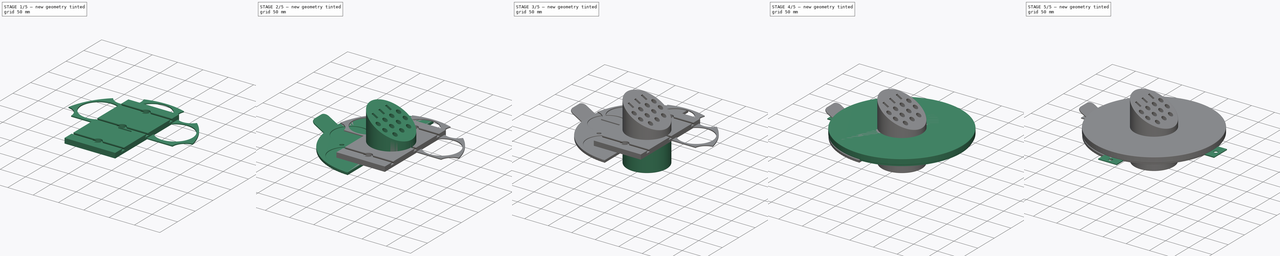
[diagram: build sequence overview — one tinted view per stage of 5, left to right]
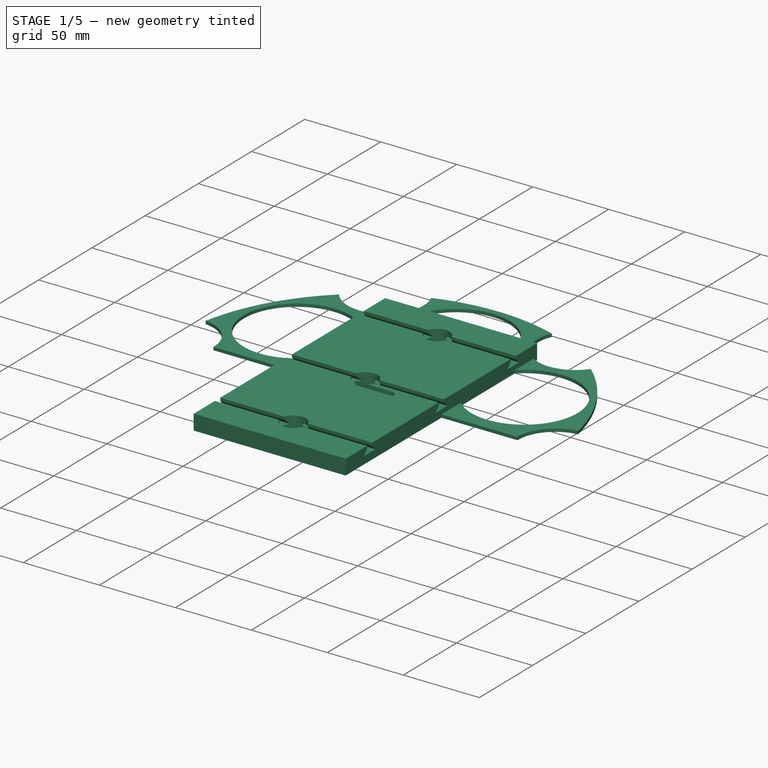
[diagram: stage 1 of 5 — iso view after this stage's code; geometry added in this stage tinted green]
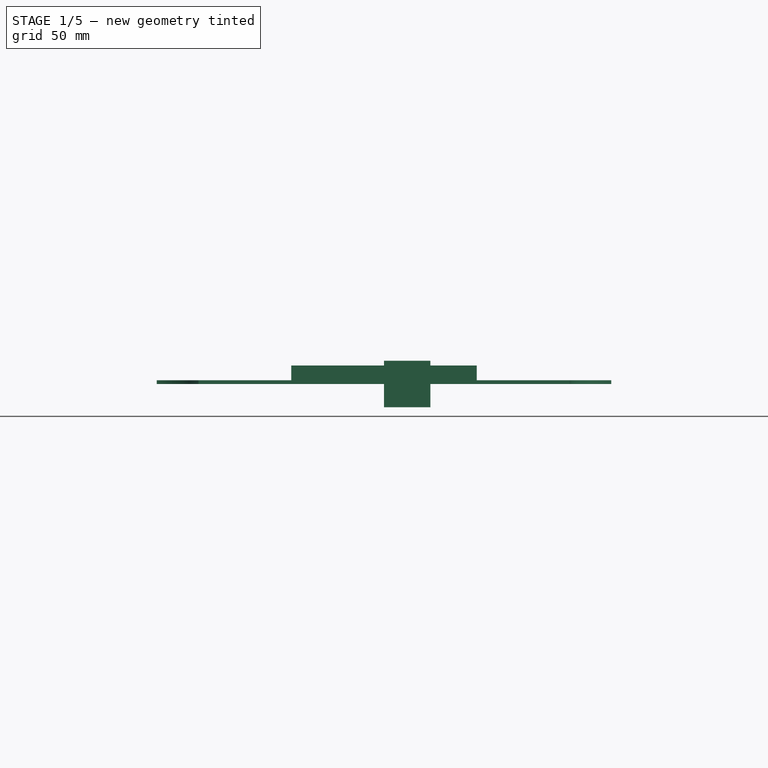
[diagram: stage 1 of 5 — front view after this stage's code; geometry added in this stage tinted green]
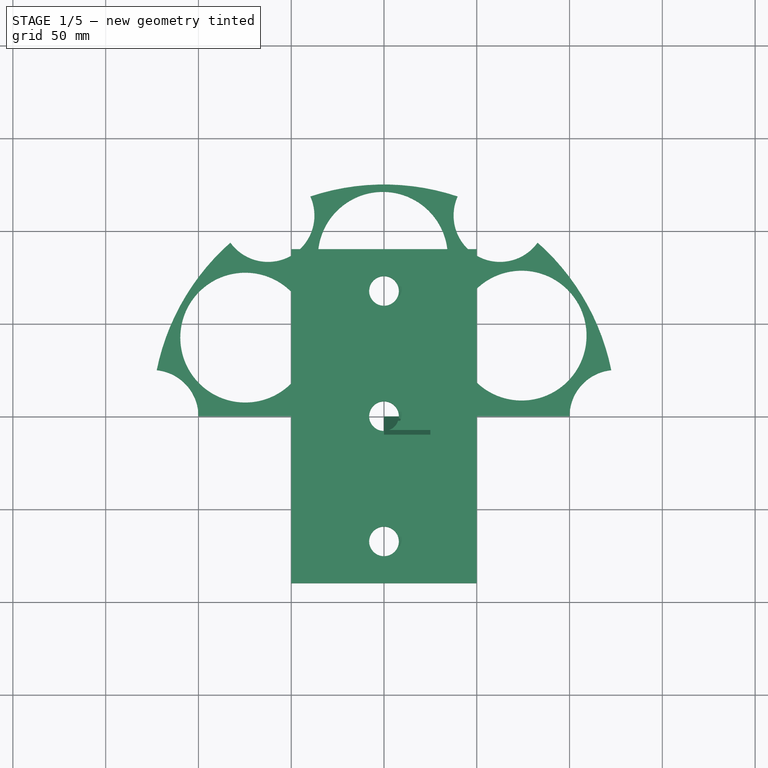
[diagram: stage 1 of 5 — top view after this stage's code; geometry added in this stage tinted green]
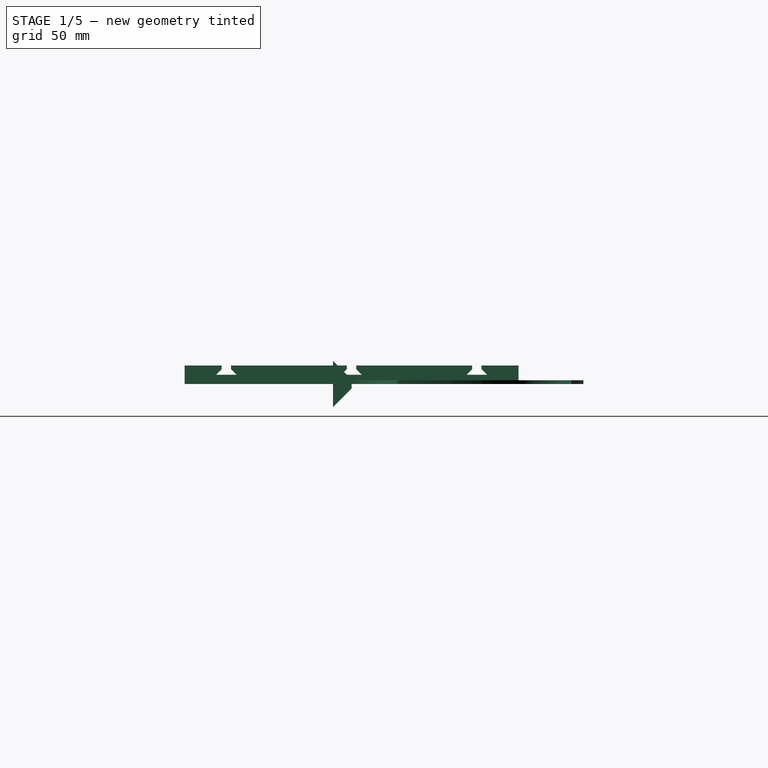
[diagram: stage 1 of 5 — right view after this stage's code; geometry added in this stage tinted green]
FCSTD DOCUMENT  (FreeCAD 2023.131R26244 +5365 (Git))
Label: Lazy Susan
License: All rights reserved
LicenseURL: http://en.wikipedia.org/wiki/All_rights_reserved
objects: Sketcher::SketchObject×43, PartDesign::Pad×17, PartDesign::Pocket×14, PartDesign::Body×13, PartDesign::PolarPattern×11, PartDesign::Fillet×8, PartDesign::Revolution×6, PartDesign::Chamfer×5, PartDesign::SubtractiveHelix×3, PartDesign::Groove×2, PartDesign::AdditiveHelix×2, PartDesign::LinearPattern×2, Spreadsheet::Sheet×1
note: 309 computed .brp shape members not serialized (recipe doc carries the construction recipe); baked Part::Feature solids carry a one-line shape summary decoded from their .brp

FEATURE [PartDesign::Body] Body009  label="Half Petri Dish Top"
  AutoGroupSolids = false
  ClaimAllChildren = false
  ExportMode = 0
  Group = -> [Sketch034,Pad011,Sketch035,Pocket009,Fillet007,Sketch036,Pad012,Fillet008]
  InvalidShape = false
  Origin = -> Origin009
  Tip = -> Fillet008
  TreeRank = 107
  ValidateShape = true
  _ExportChildren = -> [Pad011,Pocket009,Fillet007,Pad012,Fillet008]
  _GroupVersion = 1
FEATURE [Sketcher::SketchObject] Sketch037
  ArcFitTolerance = 1e-06
  AttachmentSupport = -> [XY_Plane005]
  ExternalBSplineMaxDegree = 5
  ExternalBSplineTolerance = 0.0001
  FullyConstrained = false
  InternalTolerance = 1e-06
  InvalidShape = false
  MakeInternals = false
  MapMode = 5
  Support = -> [XY_Plane005]
  TreeRank = 109
  ValidateShape = true
  expr: Constraints[2] = <<Parameters>>.outer_diameter
  expr: Constraints[3] = <<Parameters>>.outer_diameter - 2 * (<<Parameters>>.thickness * 4 + 70)
  expr: Constraints[5] = 360 / 6
  sketch-geometry (8):
    g0: ArcOfCircle CenterX=0 CenterY=0 CenterZ=0 NormalX=0 NormalY=0 NormalZ=1 AngleXU=0 Radius=47 StartAngle=0 EndAngle=1.0472
    g1: ArcOfCircle CenterX=0 CenterY=0 CenterZ=0 NormalX=0 NormalY=0 NormalZ=1 AngleXU=0 Radius=125 StartAngle=0 EndAngle=1.0472
    g2: LineSegment StartX=47 StartY=0 StartZ=0 EndX=125 EndY=0 EndZ=0
    g3: LineSegment StartX=23.5 StartY=40.7032 StartZ=0 EndX=62.5 EndY=108.253 EndZ=0
    g4: GeomPoint [constr] X=47 Y=0 Z=0
    g5: Circle [constr] CenterX=0 CenterY=0 CenterZ=0 NormalX=0 NormalY=0 NormalZ=1 AngleXU=0 Radius=86
    g6: GeomPoint [constr] X=86 Y=0 Z=0
    g7: Circle CenterX=74.1661 CenterY=43.5361 CenterZ=0 NormalX=0 NormalY=0 NormalZ=1 AngleXU=0 Radius=35
  constraints (17):
    c: Coincident(g0,g-1)
    c: Coincident(g1,g0)
    c: Diameter(g1) = 250
    c: Diameter(g0) = 94
    c: PointOnObject(g2,g-1)
    c: Angle(g2,g3) = 1.0472
    c: PointOnObject(g4,g0)
    c: PointOnObject(g4,g2)
    c: Coincident(g5,g0)
    c: PointOnObject(g6,g5)
    c: Symmetric(g4,g2,g6)
    c: Coincident(g1,g3)
    c: Coincident(g1,g2)
    c: Coincident(g3,g0)
    c: Coincident(g2,g0)
    c: PointOnObject(g7,g5)
    c: Diameter(g7) = 70
FEATURE [PartDesign::Pad] Pad013
  AddSubType = 0
  AlongSketchNormal = false
  AutoTaperInnerAngle = true
  CheckUpToFaceLimits = true
  ClaimChildren = false
  Direction = (0,0,1)
  Fit = 0
  FitJoin = 0
  InnerFit = 0
  InnerFitJoin = 0
  InvalidShape = false
  Length = 2
  Length2 = 100
  Linearize = true
  NewSolid = false
  Profile = -> Sketch037
  Suppress = false
  TaperInnerAngle = 0
  TaperInnerAngleRev = 0
  TreeRank = 110
  Type = 0
  ValidateShape = true
  _ProfileBasedVersion = 1
  expr: Length = <<Parameters>>.thickness
FEATURE [PartDesign::PolarPattern] PolarPattern008
  AddSubType = 0
  Angle = 120
  Axis = -> Sketch037 [N_Axis]
  BaseFeature = -> Pad013
  CopyShape = false
  InvalidShape = false
  NewSolid = false
  Occurrences = 3
  OriginalSubs = -> [Pad013]
  Originals = -> [Pad013]
  ParallelTransform = true
  SubTransform = true
  Suppress = false
  TreeRank = 111
  ValidateShape = true
  _Version = 3
FEATURE [Sketcher::SketchObject] Sketch038
  ArcFitTolerance = 1e-06
  AttachmentSupport = -> [XY_Plane005]
  ExternalBSplineMaxDegree = 5
  ExternalBSplineTolerance = 0.0001
  FullyConstrained = true
  InternalTolerance = 1e-06
  InvalidShape = false
  MakeInternals = false
  MapMode = 5
  Support = -> [XY_Plane005]
  TreeRank = 112
  ValidateShape = true
  expr: Constraints[1] = (<<Parameters>>.roller_cage_max_diameter / 2 - (<<Parameters>>.thickness * 4 + <<Parameters>>.petri_dish_diameter) / 2) * 2
  sketch-geometry (3):
    g0: Circle [constr] CenterX=0 CenterY=0 CenterZ=0 NormalX=0 NormalY=0 NormalZ=1 AngleXU=0 Radius=83.75
    g1: Circle CenterX=41.875 CenterY=72.5296 CenterZ=0 NormalX=0 NormalY=0 NormalZ=1 AngleXU=0 Radius=3.75
    g2: LineSegment [constr] StartX=0 StartY=0 StartZ=0 EndX=41.875 EndY=72.5296 EndZ=0
  constraints (7):
    c: Coincident(g0,g-1)
    c: Diameter(g0) = 167.5
    c: Diameter(g1) = 7.5
    c: PointOnObject(g1,g0)
    c: Coincident(g2,g0)
    c: Coincident(g2,g1)
    c: Angle(g-1,g2) = 1.0472
FEATURE [PartDesign::Pad] Pad014
  AddSubType = 0
  AlongSketchNormal = false
  AutoTaperInnerAngle = true
  BaseFeature = -> PolarPattern008
  CheckUpToFaceLimits = true
  ClaimChildren = false
  Direction = (0,0,1)
  Fit = 0
  FitJoin = 0
  InnerFit = 0
  InnerFitJoin = 0
  InvalidShape = false
  Length = 4
  Length2 = 100
  Linearize = true
  NewSolid = false
  Profile = -> Sketch038
  Suppress = false
  TaperInnerAngle = 0
  TaperInnerAngleRev = 0
  TreeRank = 113
  Type = 0
  ValidateShape = true
  _ProfileBasedVersion = 1
  expr: Length = <<Parameters>>.thickness * 2
FEATURE [PartDesign::Chamfer] Chamfer004
  AddSubType = 0
  Angle = 45
  Base = -> Pad014 [Edge36]
  BaseFeature = -> Pad014
  ChamferType = 0
  FlipDirection = false
  InvalidShape = false
  NewSolid = false
  Size = 1
  Size2 = 1
  SupportTransform = false
  Suppress = false
  TreeRank = 114
  ValidateShape = true
FEATURE [PartDesign::PolarPattern] PolarPattern009
  AddSubType = 0
  Angle = 60
  Axis = -> Sketch038 [N_Axis]
  BaseFeature = -> Chamfer004
  CopyShape = false
  InvalidShape = false
  NewSolid = false
  Occurrences = 2
  OriginalSubs = -> [Pad014,Chamfer004]
  Originals = -> [Pad014,Chamfer004]
  ParallelTransform = true
  SubTransform = true
  Suppress = false
  TreeRank = 115
  ValidateShape = true
  _Version = 3
FEATURE [Sketcher::SketchObject] Sketch039
  ArcFitTolerance = 1e-06
  AttachmentSupport = -> [XY_Plane005]
  ExternalBSplineMaxDegree = 5
  ExternalBSplineTolerance = 0.0001
  FullyConstrained = true
  InternalTolerance = 1e-06
  InvalidShape = false
  MakeInternals = false
  MapMode = 5
  Support = -> [XY_Plane005]
  TreeRank = 116
  ValidateShape = true
  expr: Constraints[1] = <<Parameters>>.outer_diameter / 2
  sketch-geometry (1):
    g0: Circle CenterX=125 CenterY=0 CenterZ=0 NormalX=0 NormalY=0 NormalZ=1 AngleXU=0 Radius=25
  constraints (3):
    c: PointOnObject(g0,g-1)
    c: DistanceX(g-1,g0) = 125
    c: Diameter(g0) = 50
FEATURE [PartDesign::Pocket] Pocket010
  AddSubType = 1
  AutoTaperInnerAngle = true
  BaseFeature = -> PolarPattern009
  CheckUpToFaceLimits = true
  ClaimChildren = false
  Fit = 0
  FitJoin = 0
  InnerFit = 0
  InnerFitJoin = 0
  InvalidShape = false
  Length = 100
  Length2 = 100
  Linearize = true
  NewSolid = false
  Profile = -> Sketch039
  Suppress = false
  TaperInnerAngle = 0
  TaperInnerAngleRev = 0
  TreeRank = 117
  Type = 4
  ValidateShape = true
  _ProfileBasedVersion = 1
  _Version = 1
FEATURE [PartDesign::PolarPattern] PolarPattern010
  AddSubType = 0
  Angle = 180
  Axis = -> Sketch039 [N_Axis]
  BaseFeature = -> Pocket010
  CopyShape = false
  InvalidShape = false
  NewSolid = false
  Occurrences = 4
  OriginalSubs = -> [Pocket010]
  Originals = -> [Pocket010]
  ParallelTransform = true
  SubTransform = true
  Suppress = false
  TreeRank = 118
  ValidateShape = true
  _Version = 3
FEATURE [PartDesign::Body] Body010  label="Half Petri Dish Insert"
  AutoGroupSolids = false
  ClaimAllChildren = false
  ExportMode = 0
  Group = -> [Sketch037,Pad013,PolarPattern008,Sketch038,Pad014,Chamfer004,PolarPattern009,Sketch039,Pocket010,PolarPattern010,Sketch040,Pocket011]
  InvalidShape = false
  Origin = -> Origin010
  Tip = -> Pocket011
  TreeRank = 128
  ValidateShape = true
  _ExportChildren = -> [Pad013,PolarPattern008,Pad014,Chamfer004,PolarPattern009,Pocket010,PolarPattern010,Pocket011]
  _GroupVersion = 1
FEATURE [Sketcher::SketchObject] Sketch041
  ArcFitTolerance = 1e-06
  ExternalBSplineMaxDegree = 5
  ExternalBSplineTolerance = 0.0001
  FullyConstrained = true
  InternalTolerance = 1e-06
  InvalidShape = false
  MakeInternals = false
  MapMode = 2
  TreeRank = 236
  ValidateShape = true
  expr: Constraints[10] = <<Parameters>>.tool_plate_width
  expr: Constraints[11] = <<Parameters>>.tool_plate_height
  sketch-geometry (5):
    g0: LineSegment StartX=50 StartY=-90 StartZ=0 EndX=50 EndY=90 EndZ=0
    g1: LineSegment StartX=50 StartY=90 StartZ=0 EndX=-50 EndY=90 EndZ=0
    g2: LineSegment StartX=-50 StartY=90 StartZ=0 EndX=-50 EndY=-90 EndZ=0
    g3: LineSegment StartX=-50 StartY=-90 StartZ=0 EndX=50 EndY=-90 EndZ=0
    g4: GeomPoint [constr] X=0 Y=0 Z=0
  constraints (12):
    c: Coincident(g0,g1)
    c: Coincident(g1,g2)
    c: Coincident(g2,g3)
    c: Coincident(g3,g0)
    c: Horizontal(g1)
    c: Horizontal(g3)
    c: Vertical(g0)
    c: Vertical(g2)
    c: Symmetric(g1,g0,g4)
    c: Coincident(g4,g-1)
    c: DistanceX(g1,g0) = 100
    c: DistanceY(g0,g0) = 180
FEATURE [PartDesign::Pad] Pad015
  AddSubType = 0
  AlongSketchNormal = false
  AutoTaperInnerAngle = true
  CheckUpToFaceLimits = true
  ClaimChildren = false
  Direction = (0,0,1)
  Fit = 0
  FitJoin = 0
  InnerFit = 0
  InnerFitJoin = 0
  InvalidShape = false
  Length = 10
  Length2 = 100
  Linearize = true
  NewSolid = false
  Profile = -> Sketch041
  Suppress = false
  TaperInnerAngle = 0
  TaperInnerAngleRev = 0
  TreeRank = 237
  Type = 0
  ValidateShape = true
  _ProfileBasedVersion = 1
  expr: Length = <<Parameters>>.tool_plate_thickness
FEATURE [Sketcher::SketchObject] Sketch042
  ArcFitTolerance = 1e-06
  AttachmentSupport = -> [YZ_Plane011]
  ExternalBSplineMaxDegree = 5
  ExternalBSplineTolerance = 0.0001
  FullyConstrained = false
  InternalTolerance = 1e-06
  InvalidShape = false
  MakeInternals = false
  MapMode = 5
  Placement = pos=(0,0,0) rot=(0.57735,0.57735,0.57735;2.0944rad)
  Support = -> [YZ_Plane011]
  TreeRank = 238
  ValidateShape = true
  expr: Constraints[0] = <<Parameters>>.tool_plate_thickness / 2
  expr: Constraints[10] = <<Parameters>>.tool_plate_height / 2 * <<Parameters>>.tool_plate_dovetail_count / (<<Parameters>>.tool_plate_dovetail_count + 1)
  expr: Constraints[13] = <<Parameters>>.tool_plate_thickness
  expr: Constraints[19] = <<Parameters>>.tool_plate_dovetail_angle / 2
  expr: Constraints[1] = <<Parameters>>.tool_plate_dovetail_min_width
  sketch-geometry (9):
    g0: LineSegment StartX=62 StartY=5 StartZ=0 EndX=73 EndY=5 EndZ=0
    g1: LineSegment StartX=65 StartY=8 StartZ=0 EndX=65 EndY=13 EndZ=0
    g2: LineSegment StartX=70 StartY=8 StartZ=0 EndX=70 EndY=13 EndZ=0
    g3: LineSegment StartX=70 StartY=13 StartZ=0 EndX=65 EndY=13 EndZ=0
    g4: GeomPoint [constr] X=67.5 Y=5 Z=0
    g5: LineSegment [constr] StartX=0 StartY=10 StartZ=0 EndX=122.369 EndY=10 EndZ=0
    g6: LineSegment StartX=62 StartY=5 StartZ=0 EndX=65 EndY=8 EndZ=0
    g7: LineSegment StartX=73 StartY=5 StartZ=0 EndX=70 EndY=8 EndZ=0
    g8: GeomPoint [constr] X=65 Y=10 Z=0
  constraints (24):
    c: DistanceY(g-1,g0) = 5
    c: DistanceX(g1,g2) = 5
    c: Vertical(g1)
    c: Vertical(g2)
    c: Coincident(g3,g2)
    c: Coincident(g3,g1)
    c: Horizontal(g3)
    c: DistanceY(g1,g1) = 5
    c: Horizontal(g0)
    c: Symmetric(g0,g0,g4)
    c: DistanceX(g-1,g4) = 67.5
    c: PointOnObject(g5,g-2)
    c: Horizontal(g5)
    c: DistanceY(g-1,g5) = 10
    c: Equal(g1,g2)
    c: Coincident(g6,g0)
    c: Coincident(g6,g1)
    c: Coincident(g7,g0)
    c: Coincident(g7,g2)
    c: Angle(g7,g0) = 0.785398
    c: Equal(g6,g7)
    c: PointOnObject(g8,g5)
    c: PointOnObject(g8,g1)
    c: DistanceY(g1,g8) = 2
FEATURE [PartDesign::Pocket] Pocket012
  AddSubType = 1
  AutoTaperInnerAngle = true
  BaseFeature = -> Pad015
  CheckUpToFaceLimits = true
  ClaimChildren = false
  Fit = 0
  FitJoin = 0
  InnerFit = 0
  InnerFitJoin = 0
  InvalidShape = false
  Length = 100
  Length2 = 100
  Linearize = true
  NewSolid = false
  Profile = -> Sketch042
  Suppress = false
  TaperInnerAngle = 0
  TaperInnerAngleRev = 0
  TreeRank = 239
  Type = 4
  ValidateShape = true
  _ProfileBasedVersion = 1
  _Version = 1
FEATURE [PartDesign::LinearPattern] LinearPattern
  AddSubType = 0
  BaseFeature = -> Pocket012
  CopyShape = false
  Direction = -> Sketch042 [H_Axis]
  InvalidShape = false
  Length = 135
  NewSolid = false
  Occurrences = 3
  OriginalSubs = -> [Pocket012]
  Originals = -> [Pocket012]
  ParallelTransform = true
  Reversed = true
  SubTransform = true
  Suppress = false
  TreeRank = 240
  ValidateShape = true
  _Version = 3
  expr: Length = <<Parameters>>.tool_plate_height * <<Parameters>>.tool_plate_dovetail_count / (<<Parameters>>.tool_plate_dovetail_count + 1)
  expr: Occurrences = <<Parameters>>.tool_plate_dovetail_count
FEATURE [Sketcher::SketchObject] Sketch043
  ArcFitTolerance = 1e-06
  ExternalBSplineMaxDegree = 5
  ExternalBSplineTolerance = 0.0001
  FullyConstrained = true
  InternalTolerance = 1e-06
  InvalidShape = false
  MakeInternals = false
  MapMode = 2
  TreeRank = 241
  ValidateShape = true
  expr: Constraints[1] = <<Parameters>>.tool_plate_height / 2 * <<Parameters>>.tool_plate_dovetail_count / (<<Parameters>>.tool_plate_dovetail_count + 1)
  expr: Constraints[2] = <<Parameters>>.tool_plate_mounting_hole_diameter + <<Parameters>>.thread_tolerance
  sketch-geometry (1):
    g0: Circle CenterX=0 CenterY=67.5 CenterZ=0 NormalX=0 NormalY=0 NormalZ=1 AngleXU=0 Radius=8
  constraints (3):
    c: PointOnObject(g0,g-2)
    c: DistanceY(g-1,g0) = 67.5
    c: Diameter(g0) = 16
FEATURE [PartDesign::Pocket] Pocket013
  AddSubType = 1
  AutoTaperInnerAngle = true
  BaseFeature = -> LinearPattern
  CheckUpToFaceLimits = true
  ClaimChildren = false
  Fit = 0
  FitJoin = 0
  InnerFit = 0
  InnerFitJoin = 0
  InvalidShape = false
  Length = 10
  Length2 = 100
  Linearize = true
  NewSolid = false
  Profile = -> Sketch043
  Reversed = true
  Suppress = false
  TaperInnerAngle = 0
  TaperInnerAngleRev = 0
  TreeRank = 242
  Type = 0
  ValidateShape = true
  _ProfileBasedVersion = 1
  _Version = 1
  expr: Length = <<Parameters>>.tool_plate_thickness
FEATURE [Sketcher::SketchObject] Sketch044
  ArcFitTolerance = 1e-06
  AttachmentSupport = -> [YZ_Plane011]
  ExternalBSplineMaxDegree = 5
  ExternalBSplineTolerance = 0.0001
  FullyConstrained = false
  InternalTolerance = 1e-06
  InvalidShape = false
  MakeInternals = false
  MapMode = 5
  Placement = pos=(0,0,0) rot=(0.57735,0.57735,0.57735;2.0944rad)
  Support = -> [YZ_Plane011]
  TreeRank = 243
  ValidateShape = true
  expr: Constraints[10] = <<Parameters>>.tool_plate_height / 2 * <<Parameters>>.tool_plate_dovetail_count / (<<Parameters>>.tool_plate_dovetail_count + 1) + (<<Parameters>>.tool_plate_mounting_hole_diameter + <<Parameters>>.thread_tolerance) / 2
  expr: Constraints[12] = <<Parameters>>.tool_plate_height / 2 * <<Parameters>>.tool_plate_dovetail_count / (<<Parameters>>.tool_plate_dovetail_count + 1)
  expr: Constraints[13] = <<Parameters>>.tool_plate_thickness * 2 / 3
  expr: Constraints[7] = <<Parameters>>.thread_depth * 1.1
  expr: Constraints[8] = <<Parameters>>.thread_pitch / 1.9
  expr: Constraints[9] = 90 - <<Parameters>>.thread_angle
  sketch-geometry (5):
    g0: LineSegment StartX=75.5 StartY=6.66667 StartZ=0 EndX=75.5 EndY=4.5614 EndZ=0
    g1: LineSegment StartX=75.5 StartY=6.66667 StartZ=0 EndX=77.15 EndY=5.89726 EndZ=0
    g2: LineSegment StartX=75.5 StartY=4.5614 StartZ=0 EndX=77.15 EndY=5.33081 EndZ=0
    g3: LineSegment StartX=77.15 StartY=5.33081 StartZ=0 EndX=77.15 EndY=5.89726 EndZ=0
    g4: LineSegment [constr] StartX=67.5 StartY=21.5507 StartZ=0 EndX=67.5 EndY=-19.8561 EndZ=0
  constraints (14):
    c: Vertical(g0)
    c: Coincident(g1,g0)
    c: Coincident(g2,g0)
    c: Coincident(g3,g2)
    c: Coincident(g3,g1)
    c: Vertical(g3)
    c: Equal(g1,g2)
    c: DistanceX(g0,g1) = 1.65
    c: DistanceY(g0,g0) = 2.10526
    c: Angle(g0,g1) = 1.13446
    c: DistanceX(g-1,g0) = 75.5
    c: Vertical(g4)
    c: DistanceX(g-1,g4) = 67.5
    c: DistanceY(g-1,g0) = 6.66667
FEATURE [PartDesign::SubtractiveHelix] Helix004
  AddSubType = 1
  Angle = 0
  Axis = (1.38e-14,-1.38e-14,-41.4068)
  Base = (1.53e-14,67.5,21.5507)
  BaseFeature = -> Pocket013
  ClaimChildren = false
  Fit = 0
  FitJoin = 0
  Growth = 0
  HasBeenEdited = true
  Height = 6.66667
  InnerFit = 0
  InnerFitJoin = 0
  InvalidShape = false
  LeftHanded = false
  Linearize = true
  Mode = 0
  NewSolid = false
  Outside = false
  Pitch = 4
  Profile = -> Sketch044
  ReferenceAxis = -> Sketch044 [Axis]
  Suppress = false
  TreeRank = 244
  Turns = 1.66667
  ValidateShape = true
  _ProfileBasedVersion = 1
  expr: Height = <<Parameters>>.tool_plate_thickness * 2 / 3
  expr: Pitch = <<Parameters>>.thread_pitch
FEATURE [PartDesign::LinearPattern] LinearPattern001
  AddSubType = 0
  BaseFeature = -> Helix004
  CopyShape = false
  Direction = -> Sketch044 [H_Axis]
  InvalidShape = false
  Length = 135
  NewSolid = false
  Occurrences = 3
  OriginalSubs = -> [Helix004,Pocket013]
  Originals = -> [Helix004,Pocket013]
  ParallelTransform = true
  Reversed = true
  SubTransform = true
  Suppress = false
  TreeRank = 245
  ValidateShape = true
  _Version = 3
  expr: Length = <<Parameters>>.tool_plate_height * <<Parameters>>.tool_plate_dovetail_count / (<<Parameters>>.tool_plate_dovetail_count + 1)
  expr: Occurrences = <<Parameters>>.tool_plate_dovetail_count
FEATURE [PartDesign::Body] Body011  label="Tool Mounting Plate"
  AutoGroupSolids = false
  ClaimAllChildren = false
  ExportMode = 0
  Group = -> [Sketch041,Pad015,Sketch042,Pocket012,LinearPattern,Sketch043,Pocket013,Sketch044,Helix004,LinearPattern001]
  InvalidShape = false
  Origin = -> Origin011
  Tip = -> LinearPattern001
  TreeRank = 235
  ValidateShape = true
  _ExportChildren = -> [Pad015,Pocket012,LinearPattern,Pocket013,Helix004,LinearPattern001]
  _GroupVersion = 1
FEATURE [Sketcher::SketchObject] Sketch045
  ArcFitTolerance = 1e-06
  AttachmentSupport = -> [YZ_Plane012]
  ExternalBSplineMaxDegree = 5
  ExternalBSplineTolerance = 0.0001
  FullyConstrained = true
  InternalTolerance = 1e-06
  InvalidShape = false
  MakeInternals = false
  MapMode = 5
  Placement = pos=(0,0,0) rot=(0.57735,0.57735,0.57735;2.0944rad)
  Support = -> [YZ_Plane012]
  TreeRank = 256
  ValidateShape = true
  expr: Constraints[5] = <<Parameters>>.tool_plate_dovetail_min_width
  expr: Constraints[7] = <<Parameters>>.tool_plate_thickness
  expr: Constraints[9] = <<Parameters>>.tool_plate_dovetail_angle / 2
  sketch-geometry (4):
    g0: LineSegment StartX=-10 StartY=12.5 StartZ=0 EndX=-10 EndY=-12.5 EndZ=0
    g1: LineSegment StartX=-10 StartY=12.5 StartZ=0 EndX=0 EndY=2.5 EndZ=0
    g2: LineSegment StartX=-10 StartY=-12.5 StartZ=0 EndX=0 EndY=-2.5 EndZ=0
    g3: LineSegment StartX=0 StartY=2.5 StartZ=0 EndX=0 EndY=-2.5 EndZ=0
  constraints (11):
    c: Vertical(g0)
    c: Coincident(g1,g0)
    c: Coincident(g3,g1)
    c: Coincident(g3,g2)
    c: Vertical(g3)
    c: DistanceY(g2,g1) = 5
    c: Coincident(g2,g0)
    c: DistanceX(g0,g1) = 10
    c: Equal(g1,g2)
    c: Angle(g0,g1) = 0.785398
    c: Symmetric(g1,g2,g-1)
FEATURE [PartDesign::Pad] Pad016
  AddSubType = 0
  AlongSketchNormal = false
  AutoTaperInnerAngle = true
  CheckUpToFaceLimits = true
  ClaimChildren = false
  Direction = (1,-2e-16,3e-16)
  Fit = 0
  FitJoin = 0
  InnerFit = 0
  InnerFitJoin = 0
  InvalidShape = false
  Length = 25
  Length2 = 100
  Linearize = true
  NewSolid = false
  Profile = -> Sketch045
  Suppress = false
  TaperInnerAngle = 0
  TaperInnerAngleRev = 0
  TreeRank = 257
  Type = 0
  ValidateShape = true
  _ProfileBasedVersion = 1
FEATURE [PartDesign::Body] Body012  label="Trash Can"
  AutoGroupSolids = false
  ClaimAllChildren = false
  ExportMode = 0
  Group = -> [Sketch045,Pad016]
  InvalidShape = false
  Origin = -> Origin012
  Tip = -> Pad016
  TreeRank = 255
  ValidateShape = true
  _ExportChildren = -> [Pad016]
  _GroupVersion = 1
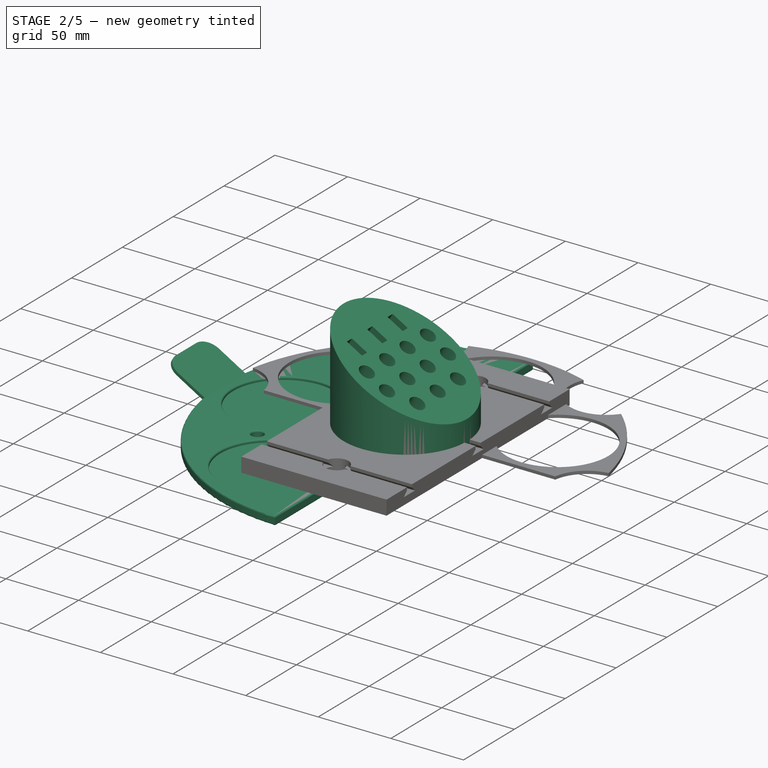
[diagram: stage 2 of 5 — iso view after this stage's code; geometry added in this stage tinted green]
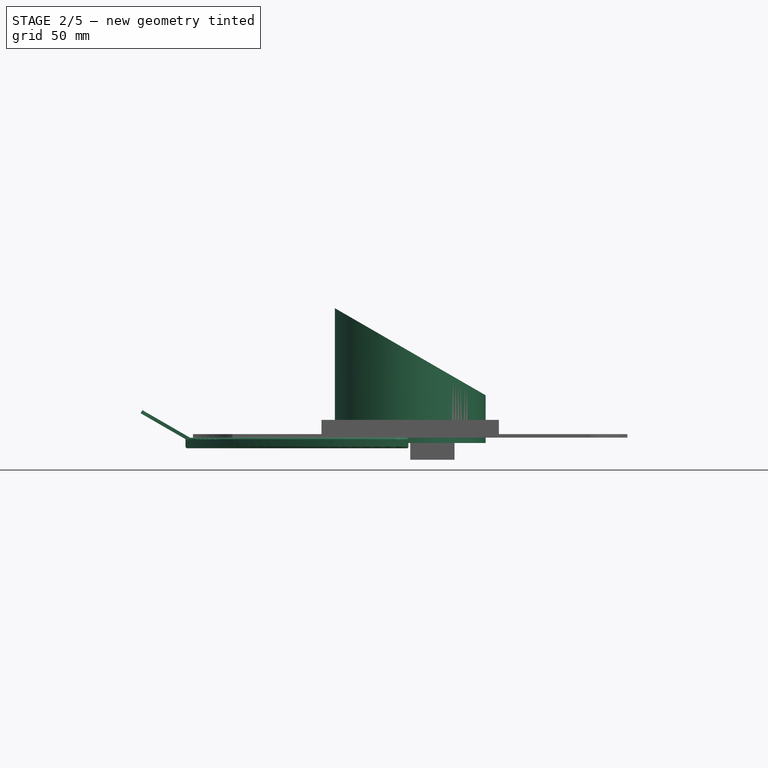
[diagram: stage 2 of 5 — front view after this stage's code; geometry added in this stage tinted green]
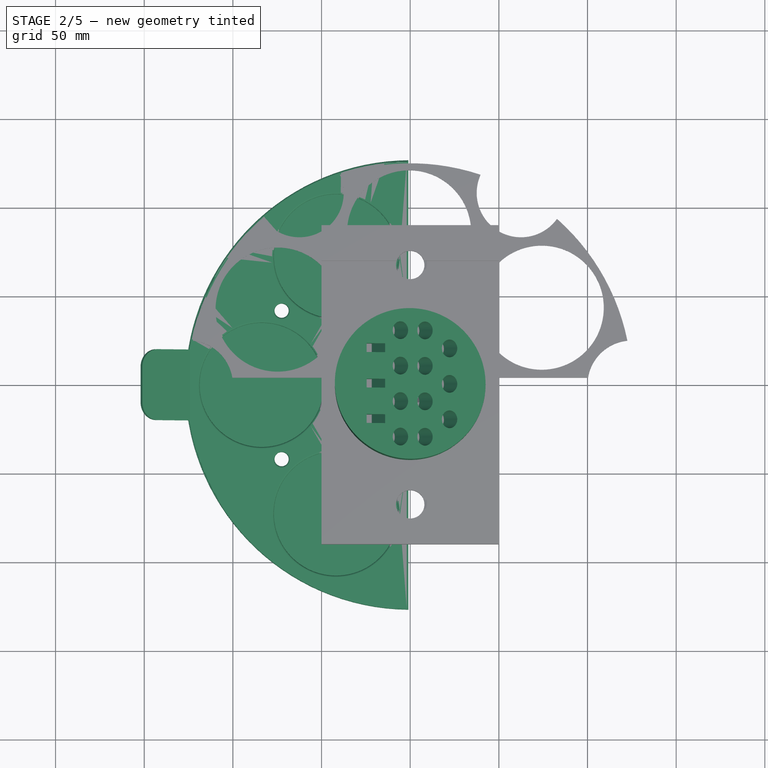
[diagram: stage 2 of 5 — top view after this stage's code; geometry added in this stage tinted green]
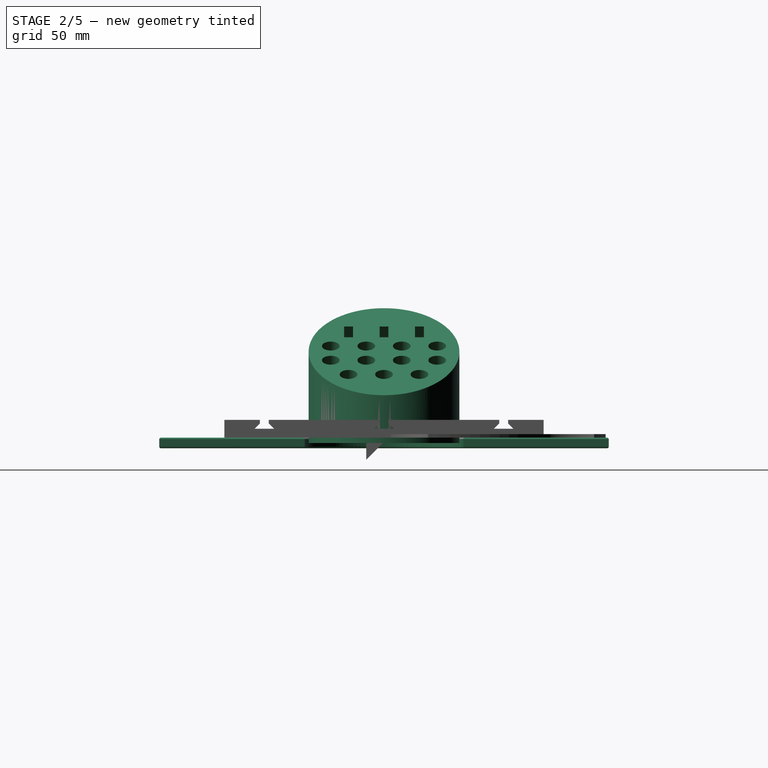
[diagram: stage 2 of 5 — right view after this stage's code; geometry added in this stage tinted green]
FEATURE [PartDesign::Body] Body006  label="Tool Pedistal Base"
  AutoGroupSolids = false
  ClaimAllChildren = false
  ExportMode = 0
  Group = -> [Sketch019,Sketch020,Pad006,Sketch021,Pocket003,Helix,Sketch022,Pocket004,Sketch023,Helix001,Chamfer001,Sketch024,Pocket005,Chamfer002]
  InvalidShape = false
  Origin = -> Origin006
  Tip = -> Chamfer002
  TreeRank = 129
  ValidateShape = true
  _ExportChildren = -> [Pad006,Pocket003,Helix,Pocket004,Helix001,Chamfer001,Pocket005,Chamfer002]
  _GroupVersion = 1
FEATURE [Sketcher::SketchObject] Sketch025
  ArcFitTolerance = 1e-06
  AttachmentSupport = -> [XY_Plane007]
  ExternalBSplineMaxDegree = 5
  ExternalBSplineTolerance = 0.0001
  FullyConstrained = true
  InternalTolerance = 1e-06
  InvalidShape = false
  MakeInternals = false
  MapMode = 5
  Support = -> [XY_Plane007]
  TreeRank = 155
  ValidateShape = true
  expr: Constraints[1] = <<Parameters>>.tool_holder_diameter
  expr: Constraints[3] = <<Parameters>>.tool_holder_diameter - 2 * <<Parameters>>.thickness
  sketch-geometry (2):
    g0: Circle CenterX=0 CenterY=0 CenterZ=0 NormalX=0 NormalY=0 NormalZ=1 AngleXU=0 Radius=42.5
    g1: Circle CenterX=0 CenterY=0 CenterZ=0 NormalX=0 NormalY=0 NormalZ=1 AngleXU=0 Radius=40.5
  constraints (4):
    c: Coincident(g0,g-1)
    c: Diameter(g0) = 85
    c: Coincident(g1,g0)
    c: Diameter(g1) = 81
FEATURE [PartDesign::Pad] Pad007
  AddSubType = 0
  AlongSketchNormal = false
  AutoTaperInnerAngle = true
  CheckUpToFaceLimits = true
  ClaimChildren = false
  Direction = (0,0,1)
  Fit = 0
  FitJoin = 0
  InnerFit = 0
  InnerFitJoin = 0
  InvalidShape = false
  Length = 73
  Length2 = 2.99
  Linearize = true
  NewSolid = false
  Profile = -> Sketch025
  Suppress = false
  TaperInnerAngle = 0
  TaperInnerAngleRev = 0
  TreeRank = 156
  Type = 4
  ValidateShape = true
  _ProfileBasedVersion = 1
  expr: Length = <<Parameters>>.thread_pitch * 2 + <<Parameters>>.tool_holder_top_height
FEATURE [PartDesign::Chamfer] Chamfer003
  AddSubType = 0
  Angle = 45
  Base = -> Pad007 [Edge5]
  BaseFeature = -> Pad007
  ChamferType = 0
  FlipDirection = false
  InvalidShape = false
  NewSolid = false
  Size = 0.99
  Size2 = 1
  SupportTransform = false
  Suppress = false
  TreeRank = 157
  ValidateShape = true
FEATURE [Sketcher::SketchObject] Sketch026
  ArcFitTolerance = 1e-06
  AttachmentSupport = -> [XZ_Plane007]
  ExternalBSplineMaxDegree = 5
  ExternalBSplineTolerance = 0.0001
  FullyConstrained = true
  InternalTolerance = 1e-06
  InvalidShape = false
  MakeInternals = false
  MapMode = 5
  Placement = pos=(0,0,0) rot=(1,0,0;1.5708rad)
  Support = -> [XZ_Plane007]
  TreeRank = 158
  ValidateShape = true
  expr: Constraints[11] = <<Parameters>>.tool_holder_diameter / 2 - <<Parameters>>.thickness
  expr: Constraints[7] = <<Parameters>>.thread_pitch / 2.1
  expr: Constraints[8] = <<Parameters>>.thread_depth
  expr: Constraints[9] = 90 - <<Parameters>>.thread_angle
  sketch-geometry (4):
    g0: LineSegment StartX=-40.5 StartY=0 StartZ=0 EndX=-40.5 EndY=1.90476 EndZ=0
    g1: LineSegment StartX=-40.5 StartY=1.90476 StartZ=0 EndX=-39 EndY=1.2053 EndZ=0
    g2: LineSegment StartX=-40.5 StartY=0 StartZ=0 EndX=-39 EndY=0.699461 EndZ=0
    g3: LineSegment StartX=-39 StartY=0.699461 StartZ=0 EndX=-39 EndY=1.2053 EndZ=0
  constraints (12):
    c: Vertical(g0)
    c: Coincident(g1,g0)
    c: Coincident(g3,g2)
    c: Coincident(g3,g1)
    c: Vertical(g3)
    c: Equal(g1,g2)
    c: Coincident(g2,g0)
    c: DistanceY(g0,g0) = 1.90476
    c: DistanceX(g0,g1) = 1.5
    c: Angle(g0,g1) = 1.13446
    c: DistanceY(g-1,g0) = 0
    c: DistanceX(g0,g-1) = 40.5
FEATURE [PartDesign::AdditiveHelix] Helix002
  AddSubType = 0
  Angle = 0
  Axis = (0,0,1)
  Base = (0,0,0)
  BaseFeature = -> Chamfer003
  ClaimChildren = false
  Fit = 0
  FitJoin = 0
  Growth = 0
  HasBeenEdited = true
  Height = 8
  InnerFit = 0
  InnerFitJoin = 0
  InvalidShape = false
  LeftHanded = false
  Linearize = true
  Mode = 1
  NewSolid = false
  Outside = false
  Pitch = 4
  Profile = -> Sketch026
  ReferenceAxis = -> Sketch026 [V_Axis]
  Suppress = false
  TreeRank = 159
  Turns = 2
  ValidateShape = true
  _ProfileBasedVersion = 1
  expr: Height = <<Parameters>>.thread_pitch * 1.5
  expr: Pitch = <<Parameters>>.thread_pitch
FEATURE [Sketcher::SketchObject] Sketch027
  ArcFitTolerance = 1e-06
  AttachmentSupport = -> [XZ_Plane007]
  ExternalBSplineMaxDegree = 5
  ExternalBSplineTolerance = 0.0001
  FullyConstrained = true
  InternalTolerance = 1e-06
  InvalidShape = false
  MakeInternals = false
  MapMode = 5
  Placement = pos=(0,0,0) rot=(1,0,0;1.5708rad)
  Support = -> [XZ_Plane007]
  TreeRank = 160
  ValidateShape = true
  expr: Constraints[5] = <<Parameters>>.tool_holder_diameter / 2
  expr: Constraints[6] = <<Parameters>>.tool_holder_diameter / 2
  expr: Constraints[8] = <<Parameters>>.thread_pitch * 2 + <<Parameters>>.tool_holder_top_height
  sketch-geometry (3):
    g0: LineSegment StartX=-42.5 StartY=73 StartZ=0 EndX=42.5 EndY=23.9252 EndZ=0
    g1: LineSegment StartX=42.5 StartY=23.9252 StartZ=0 EndX=42.5 EndY=73 EndZ=0
    g2: LineSegment StartX=-42.5 StartY=73 StartZ=0 EndX=42.5 EndY=73 EndZ=0
  constraints (9):
    c: Coincident(g1,g0)
    c: Vertical(g1)
    c: Coincident(g2,g0)
    c: Horizontal(g2)
    c: Coincident(g1,g2)
    c: DistanceX(g0,g-1) = 42.5
    c: DistanceX(g-1,g1) = 42.5
    c: Angle(g0,g-1) = 0.523599
    c: DistanceY(g-1,g1) = 73
FEATURE [PartDesign::Pocket] Pocket006
  AddSubType = 1
  AutoTaperInnerAngle = true
  BaseFeature = -> Helix002
  CheckUpToFaceLimits = true
  ClaimChildren = false
  Fit = 0
  FitJoin = 0
  InnerFit = 0
  InnerFitJoin = 0
  InvalidShape = false
  Length = 100
  Length2 = 100
  Linearize = true
  NewSolid = false
  Profile = -> Sketch027
  Suppress = false
  TaperInnerAngle = 0
  TaperInnerAngleRev = 0
  TreeRank = 161
  Type = 4
  ValidateShape = true
  _ProfileBasedVersion = 1
  _Version = 1
FEATURE [Sketcher::SketchObject] Sketch028
  ArcFitTolerance = 1e-06
  AttachmentSupport = -> [XZ_Plane007]
  ExternalBSplineMaxDegree = 5
  ExternalBSplineTolerance = 0.0001
  FullyConstrained = true
  InternalTolerance = 1e-06
  InvalidShape = false
  MakeInternals = false
  MapMode = 5
  Placement = pos=(0,0,0) rot=(1,0,0;1.5708rad)
  Support = -> [XZ_Plane007]
  TreeRank = 162
  ValidateShape = true
  expr: Constraints[20] = <<Parameters>>.thickness
  expr: Constraints[21] = <<Parameters>>.tool_holder_diameter / 2
  expr: Constraints[5] = <<Parameters>>.tool_holder_diameter / 2
  expr: Constraints[6] = <<Parameters>>.tool_holder_diameter / 2
  expr: Constraints[8] = <<Parameters>>.thread_pitch * 2 + <<Parameters>>.tool_holder_top_height
  sketch-geometry (8):
    g0: LineSegment StartX=-42.5 StartY=73 StartZ=0 EndX=42.5 EndY=23.9252 EndZ=0
    g1: LineSegment [constr] StartX=42.5 StartY=23.9252 StartZ=0 EndX=42.5 EndY=73 EndZ=0
    g2: LineSegment [constr] StartX=-42.5 StartY=73 StartZ=0 EndX=42.5 EndY=73 EndZ=0
    g3: LineSegment StartX=42.5 StartY=23.9252 StartZ=0 EndX=42.5 EndY=21.6158 EndZ=0
    g4: LineSegment StartX=-42.5 StartY=73 StartZ=0 EndX=-42.5 EndY=73 EndZ=0
    g5: LineSegment StartX=-42.5 StartY=73 StartZ=0 EndX=-42.5 EndY=70.6906 EndZ=0
    g6: LineSegment StartX=-42.5 StartY=70.6906 StartZ=0 EndX=42.5 EndY=21.6158 EndZ=0
    g7: LineSegment [constr] StartX=4.7636e-12 StartY=46.1532 StartZ=0 EndX=1 EndY=47.8853 EndZ=0
  constraints (24):
    c: Coincident(g1,g0)
    c: Vertical(g1)
    c: Coincident(g2,g0)
    c: Horizontal(g2)
    c: Coincident(g1,g2)
    c: DistanceX(g0,g-1) = 42.5
    c: DistanceX(g-1,g1) = 42.5
    c: Angle(g0,g-1) = 0.523599
    c: DistanceY(g-1,g1) = 73
    c: Coincident(g3,g0)
    c: Vertical(g3)
    c: Coincident(g4,g0)
    c: Horizontal(g4)
    c: Coincident(g5,g4)
    c: Vertical(g5)
    c: Coincident(g6,g3)
    c: Parallel(g0,g6)
    c: PointOnObject(g7,g6)
    c: PointOnObject(g7,g0)
    c: Perpendicular(g7,g6)
    c: Distance(g7,g7) = 2
    c: DistanceX(g5,g-1) = 42.5
    c: PointOnObject(g7,g-2)
    c: Coincident(g6,g5)
FEATURE [Sketcher::SketchObject] Sketch029
  ArcFitTolerance = 1e-06
  ExternalBSplineMaxDegree = 5
  ExternalBSplineTolerance = 0.0001
  FullyConstrained = true
  InternalTolerance = 1e-06
  InvalidShape = false
  MakeInternals = false
  MapMode = 2
  TreeRank = 164
  ValidateShape = true
  expr: Constraints[13] = <<Parameters>>.tool_holder_diameter * 2
  expr: Constraints[1] = <<Parameters>>.tool_holder_diameter
  sketch-geometry (6):
    g0: Circle CenterX=0 CenterY=0 CenterZ=0 NormalX=0 NormalY=0 NormalZ=1 AngleXU=0 Radius=42.5
    g1: LineSegment StartX=85 StartY=-85 StartZ=0 EndX=85 EndY=85 EndZ=0
    g2: LineSegment StartX=85 StartY=85 StartZ=0 EndX=-85 EndY=85 EndZ=0
    g3: LineSegment StartX=-85 StartY=85 StartZ=0 EndX=-85 EndY=-85 EndZ=0
    g4: LineSegment StartX=-85 StartY=-85 StartZ=0 EndX=85 EndY=-85 EndZ=0
    g5: GeomPoint [constr] X=0 Y=0 Z=0
  constraints (14):
    c: Coincident(g0,g-1)
    c: Diameter(g0) = 85
    c: Coincident(g1,g2)
    c: Coincident(g2,g3)
    c: Coincident(g3,g4)
    c: Coincident(g4,g1)
    c: Horizontal(g2)
    c: Horizontal(g4)
    c: Vertical(g1)
    c: Vertical(g3)
    c: Symmetric(g2,g1,g5)
    c: Coincident(g5,g0)
    c: Equal(g2,g1)
    c: DistanceY(g1,g1) = 170
FEATURE [PartDesign::Pad] Pad008
  AddSubType = 0
  AlongSketchNormal = false
  AutoTaperInnerAngle = true
  BaseFeature = -> Pocket006
  CheckUpToFaceLimits = true
  ClaimChildren = false
  Direction = (0,-1,-2e-16)
  Fit = 0
  FitJoin = 0
  InnerFit = 0
  InnerFitJoin = 0
  InvalidShape = false
  Length = 85
  Length2 = 85
  Linearize = true
  NewSolid = false
  Profile = -> Sketch028
  Suppress = false
  TaperInnerAngle = 0
  TaperInnerAngleRev = 0
  TreeRank = 166
  Type = 4
  ValidateShape = true
  _ProfileBasedVersion = 1
  expr: Length = <<Parameters>>.tool_holder_diameter
  expr: Length2 = <<Parameters>>.tool_holder_diameter
FEATURE [PartDesign::Pocket] Pocket007
  AddSubType = 1
  AutoTaperInnerAngle = true
  BaseFeature = -> Pad008
  CheckUpToFaceLimits = true
  ClaimChildren = false
  Fit = 0
  FitJoin = 0
  InnerFit = 0
  InnerFitJoin = 0
  InvalidShape = false
  Length = 130
  Length2 = 100
  Linearize = true
  NewSolid = false
  Profile = -> Sketch029
  Reversed = true
  Suppress = false
  TaperInnerAngle = 0
  TaperInnerAngleRev = 0
  TreeRank = 170
  Type = 0
  ValidateShape = true
  _ProfileBasedVersion = 1
  _Version = 1
  expr: Length = <<Parameters>>.tool_holder_top_height * 2
FEATURE [Sketcher::SketchObject] Sketch030
  ArcFitTolerance = 1e-06
  AttachmentSupport = -> [Pocket007]
  ExternalBSplineMaxDegree = 5
  ExternalBSplineTolerance = 0.0001
  FullyConstrained = false
  InternalTolerance = 1e-06
  InvalidShape = false
  MakeInternals = false
  MapMode = 5
  Placement = pos=(20.9849,-8.1e-15,36.347) rot=(0,1,0;0.523599rad)
  Support = -> [Pocket007]
  TreeRank = 171
  ValidateShape = true
  sketch-geometry (34):
    g0: Circle CenterX=1.39842 CenterY=20 CenterZ=0 NormalX=0 NormalY=0 NormalZ=1 AngleXU=0 Radius=5
    g1: Circle CenterX=1.39842 CenterY=-20 CenterZ=0 NormalX=0 NormalY=0 NormalZ=1 AngleXU=0 Radius=5
    g2: Circle CenterX=-30.6016 CenterY=30 CenterZ=0 NormalX=0 NormalY=0 NormalZ=1 AngleXU=0 Radius=5
    g3: Circle CenterX=-30.6016 CenterY=10 CenterZ=0 NormalX=0 NormalY=0 NormalZ=1 AngleXU=0 Radius=5
    g4: Circle CenterX=-30.6016 CenterY=-30 CenterZ=0 NormalX=0 NormalY=0 NormalZ=1 AngleXU=0 Radius=5
    g5: Circle CenterX=-30.6016 CenterY=-10 CenterZ=0 NormalX=0 NormalY=0 NormalZ=1 AngleXU=0 Radius=5
    g6: Circle CenterX=-14.6016 CenterY=30 CenterZ=0 NormalX=0 NormalY=0 NormalZ=1 AngleXU=0 Radius=5
    g7: Circle CenterX=-14.6016 CenterY=10 CenterZ=0 NormalX=0 NormalY=0 NormalZ=1 AngleXU=0 Radius=5
    g8: Circle CenterX=-14.6016 CenterY=-10 CenterZ=0 NormalX=0 NormalY=0 NormalZ=1 AngleXU=0 Radius=5
    g9: Circle CenterX=-14.6016 CenterY=-30 CenterZ=0 NormalX=0 NormalY=0 NormalZ=1 AngleXU=0 Radius=5
    g10: LineSegment [constr] StartX=-14.6016 StartY=30 StartZ=0 EndX=-14.6016 EndY=-30 EndZ=0
    g11: LineSegment [constr] StartX=-30.6016 StartY=30 StartZ=0 EndX=-30.6016 EndY=-30 EndZ=0
    g12: LineSegment [constr] StartX=1.39842 StartY=20 StartZ=0 EndX=1.39842 EndY=-20 EndZ=0
    g13: LineSegment [constr] StartX=-14.6016 StartY=30 StartZ=0 EndX=-30.6016 EndY=30 EndZ=0
    g14: LineSegment [constr] StartX=-14.6016 StartY=10 StartZ=0 EndX=-30.6016 EndY=10 EndZ=0
    g15: LineSegment [constr] StartX=-14.6016 StartY=-10 StartZ=0 EndX=-30.6016 EndY=-10 EndZ=0
    g16: LineSegment [constr] StartX=-14.6016 StartY=-30 StartZ=0 EndX=-30.6016 EndY=-30 EndZ=0
    g17: Circle CenterX=1.39842 CenterY=0 CenterZ=0 NormalX=0 NormalY=0 NormalZ=1 AngleXU=0 Radius=5
    g18: LineSegment StartX=-40.6016 StartY=17.5 StartZ=0 EndX=-40.6016 EndY=22.5 EndZ=0
    g19: LineSegment StartX=-40.6016 StartY=22.5 StartZ=0 EndX=-52.6016 EndY=22.5 EndZ=0
    g20: LineSegment StartX=-52.6016 StartY=22.5 StartZ=0 EndX=-52.6016 EndY=17.5 EndZ=0
    g21: LineSegment StartX=-52.6016 StartY=17.5 StartZ=0 EndX=-40.6016 EndY=17.5 EndZ=0
    g22: GeomPoint [constr] X=-46.6016 Y=20 Z=0
    g23: LineSegment StartX=-40.6016 StartY=-2.5 StartZ=0 EndX=-40.6016 EndY=2.5 EndZ=0
    g24: LineSegment StartX=-40.6016 StartY=2.5 StartZ=0 EndX=-52.6016 EndY=2.5 EndZ=0
    g25: LineSegment StartX=-52.6016 StartY=2.5 StartZ=0 EndX=-52.6016 EndY=-2.5 EndZ=0
    g26: LineSegment StartX=-52.6016 StartY=-2.5 StartZ=0 EndX=-40.6016 EndY=-2.5 EndZ=0
    g27: GeomPoint [constr] X=-46.6016 Y=0 Z=0
    g28: LineSegment StartX=-40.6016 StartY=-22.5 StartZ=0 EndX=-40.6016 EndY=-17.5 EndZ=0
    g29: LineSegment StartX=-40.6016 StartY=-17.5 StartZ=0 EndX=-52.6016 EndY=-17.5 EndZ=0
    g30: LineSegment StartX=-52.6016 StartY=-17.5 StartZ=0 EndX=-52.6016 EndY=-22.5 EndZ=0
    g31: LineSegment StartX=-52.6016 StartY=-22.5 StartZ=0 EndX=-40.6016 EndY=-22.5 EndZ=0
    g32: GeomPoint [constr] X=-46.6016 Y=-20 Z=0
    g33: LineSegment [constr] StartX=-46.6016 StartY=20 StartZ=0 EndX=-46.6016 EndY=-20 EndZ=0
  constraints (80):
    c: Diameter(g0) = 10
    c: Equal(g0,g1)
    c: Equal(g0,g2)
    c: Equal(g0,g3)
    c: Equal(g0,g5)
    c: Equal(g0,g4)
    c: Equal(g0, g6-g9) x4
    c: Coincident(g10,g6)
    c: Coincident(g10,g9)
    c: PointOnObject(g7,g10)
    c: Coincident(g11,g2)
    c: Coincident(g11,g4)
    c: Vertical(g11)
    c: PointOnObject(g3,g11)
    c: PointOnObject(g5,g11)
    c: Coincident(g12,g0)
    c: Coincident(g12,g1)
    c: Symmetric(g7,g8,g-1)
    c: Symmetric(g6,g9,g-1)
    c: Coincident(g13,g6)
    c: Coincident(g13,g2)
    c: Horizontal(g13)
    c: Coincident(g14,g7)
    c: Coincident(g14,g3)
    c: Horizontal(g14)
    c: Coincident(g15,g8)
    c: Coincident(g15,g5)
    c: Coincident(g16,g9)
    c: Coincident(g16,g4)
    c: Horizontal(g15)
    c: Horizontal(g16)
    c: Symmetric(g0,g1,g-1)
    c: PointOnObject(g17,g12)
    c: Equal(g0,g17)
    c: PointOnObject(g17,g-1)
    c: DistanceX(g5,g8) = 16
    c: DistanceY(g3,g2) = 20
    c: DistanceY(g5,g3) = 20
    c: DistanceY(g1,g17) = 20
    c: DistanceX(g7,g0) = 16
    c: Coincident(g18,g19)
    c: Coincident(g19,g20)
    c: Coincident(g20,g21)
    c: Coincident(g21,g18)
    c: Horizontal(g19)
    c: Horizontal(g21)
    c: Vertical(g18)
    c: Vertical(g20)
    c: Symmetric(g19,g18,g22)
    c: Coincident(g23,g24)
    c: Coincident(g24,g25)
    c: Coincident(g25,g26)
    c: Coincident(g26,g23)
    c: Horizontal(g24)
    c: Horizontal(g26)
    c: Vertical(g23)
    c: Vertical(g25)
    c: Symmetric(g24,g23,g27)
    c: PointOnObject(g27,g-1)
    c: Coincident(g28,g29)
    c: Coincident(g29,g30)
    c: Coincident(g30,g31)
    c: Coincident(g31,g28)
    c: Horizontal(g29)
    c: Horizontal(g31)
    c: Vertical(g28)
    c: Vertical(g30)
    c: Symmetric(g29,g28,g32)
    c: Coincident(g33,g22)
    c: Coincident(g33,g32)
    c: PointOnObject(g27,g33)
    c: Equal(g19,g24)
    c: Equal(g19,g29)
    c: Equal(g18,g23)
    c: Equal(g18,g28)
    c: Symmetric(g32,g22,g-1)
    c: DistanceY(g27,g22) = 20
    c: DistanceX(g32,g5) = 16
    c: DistanceY(g23,g23) = 5
    c: DistanceX(g24,g23) = 12
FEATURE [PartDesign::Pad] Pad009
  AddSubType = 0
  AlongSketchNormal = false
  AutoTaperInnerAngle = true
  BaseFeature = -> Pocket007
  CheckUpToFaceLimits = true
  ClaimChildren = false
  Direction = (0.5,-2e-16,0.866025)
  Fit = 2
  FitJoin = 0
  InnerFit = 0
  InnerFitJoin = 0
  InvalidShape = false
  Length = 15
  Length2 = 100
  Linearize = true
  NewSolid = false
  Profile = -> Sketch030
  Reversed = true
  Suppress = false
  TaperInnerAngle = 0
  TaperInnerAngleRev = 0
  TreeRank = 172
  Type = 0
  ValidateShape = true
  _ProfileBasedVersion = 1
  expr: Fit = <<Parameters>>.thickness
FEATURE [PartDesign::Pocket] Pocket008
  AddSubType = 1
  AutoTaperInnerAngle = true
  BaseFeature = -> Pad009
  CheckUpToFaceLimits = true
  ClaimChildren = false
  Fit = 0
  FitJoin = 0
  InnerFit = 0
  InnerFitJoin = 0
  InvalidShape = false
  Length = 15
  Length2 = 100
  Linearize = true
  NewSolid = false
  Profile = -> Sketch030
  Suppress = false
  TaperInnerAngle = 0
  TaperInnerAngleRev = 0
  TreeRank = 173
  Type = 0
  ValidateShape = true
  _ProfileBasedVersion = 1
  _Version = 1
FEATURE [PartDesign::Body] Body007  label="Tool Pedistal  Top"
  AutoGroupSolids = false
  ClaimAllChildren = false
  ExportMode = 0
  Group = -> [Sketch025,Pad007,Chamfer003,Sketch026,Helix002,Sketch027,Pocket006,Sketch028,Sketch029,Pad008,Pocket007,Sketch030,Pad009,Pocket008,Fillet006]
  InvalidShape = false
  Origin = -> Origin007
  Tip = -> Fillet006
  TreeRank = 154
  ValidateShape = true
  _ExportChildren = -> [Pad007,Chamfer003,Helix002,Pocket006,Pad008,Pocket007,Pad009,Pocket008,Fillet006]
  _GroupVersion = 1
FEATURE [Sketcher::SketchObject] Sketch034
  ArcFitTolerance = 1e-06
  AttachmentSupport = -> [XY_Plane009]
  ExternalBSplineMaxDegree = 5
  ExternalBSplineTolerance = 0.0001
  FullyConstrained = true
  InternalTolerance = 1e-06
  InvalidShape = false
  MakeInternals = false
  MapMode = 5
  Support = -> [XY_Plane009]
  TreeRank = 203
  ValidateShape = true
  expr: Constraints[11] = (<<Parameters>>.roller_cage_max_diameter / 2 - (<<Parameters>>.thickness * 4 + <<Parameters>>.petri_dish_diameter) / 2) * 2
  expr: Constraints[13] = 8
  expr: Constraints[1] = <<Parameters>>.roller_cage_max_diameter + <<Parameters>>.thickness * 4
  expr: Constraints[3] = <<Parameters>>.roller_cage_max_diameter - (<<Parameters>>.thickness * 4 + 70) * 2
  sketch-geometry (9):
    g0: ArcOfCircle CenterX=0 CenterY=0 CenterZ=0 NormalX=0 NormalY=0 NormalZ=1 AngleXU=0 Radius=126.75 StartAngle=1.57869 EndAngle=4.7045
    g1: ArcOfCircle CenterX=0 CenterY=0 CenterZ=0 NormalX=0 NormalY=0 NormalZ=1 AngleXU=0 Radius=44.75 StartAngle=1.59314 EndAngle=4.69004
    g2: LineSegment StartX=-1 StartY=44.7388 StartZ=0 EndX=-1 EndY=126.746 EndZ=0
    g3: LineSegment StartX=-1 StartY=-44.7388 StartZ=0 EndX=-1 EndY=-126.746 EndZ=0
    g4: Circle [constr] CenterX=0 CenterY=0 CenterZ=0 NormalX=0 NormalY=0 NormalZ=1 AngleXU=0 Radius=83.75
    g5: Circle CenterX=-72.5296 CenterY=41.875 CenterZ=0 NormalX=0 NormalY=0 NormalZ=1 AngleXU=0 Radius=4
    g6: Circle CenterX=-72.5296 CenterY=-41.875 CenterZ=0 NormalX=0 NormalY=0 NormalZ=1 AngleXU=0 Radius=4
    g7: LineSegment [constr] StartX=0 StartY=0 StartZ=0 EndX=-72.5296 EndY=41.875 EndZ=0
    g8: LineSegment [constr] StartX=0 StartY=0 StartZ=0 EndX=-72.5296 EndY=-41.875 EndZ=0
  constraints (24):
    c: Coincident(g0,g-1)
    c: Diameter(g0) = 253.5
    c: Coincident(g1,g0)
    c: Diameter(g1) = 89.5
    c: Vertical(g2)
    c: Vertical(g3)
    c: Coincident(g0,g3)
    c: Coincident(g0,g2)
    c: Coincident(g1,g3)
    c: Coincident(g1,g2)
    c: Coincident(g4,g0)
    c: Diameter(g4) = 167.5
    c: PointOnObject(g5,g4)
    c: Diameter(g5) = 8
    c: PointOnObject(g6,g4)
    c: Equal(g5,g6)
    c: Coincident(g7,g0)
    c: Coincident(g7,g5)
    c: Coincident(g8,g0)
    c: Coincident(g8,g6)
    c: Angle(g-2,g8) = 2.0944
    c: Angle(g2,g7) = 1.0472
    c: DistanceX(g1,g0) = 1
    c: DistanceX(g1,g0) = 1
FEATURE [PartDesign::Pad] Pad011
  AddSubType = 0
  AlongSketchNormal = false
  AutoTaperInnerAngle = true
  CheckUpToFaceLimits = true
  ClaimChildren = false
  Direction = (0,0,1)
  Fit = 0
  FitJoin = 0
  InnerFit = 0
  InnerFitJoin = 0
  InvalidShape = false
  Length = 6
  Length2 = 100
  Linearize = true
  NewSolid = false
  Profile = -> Sketch034
  Reversed = true
  Suppress = false
  TaperInnerAngle = 0
  TaperInnerAngleRev = 0
  TreeRank = 204
  Type = 0
  ValidateShape = true
  _ProfileBasedVersion = 1
  expr: Length = <<Parameters>>.thickness * 3
FEATURE [Sketcher::SketchObject] Sketch035
  ArcFitTolerance = 1e-06
  AttachmentSupport = -> [XY_Plane009]
  ExternalBSplineMaxDegree = 5
  ExternalBSplineTolerance = 0.0001
  FullyConstrained = true
  InternalTolerance = 1e-06
  InvalidShape = false
  MakeInternals = false
  MapMode = 5
  Support = -> [XY_Plane009]
  TreeRank = 205
  ValidateShape = true
  expr: Constraints[1] = (<<Parameters>>.roller_cage_max_diameter / 2 - (<<Parameters>>.thickness * 4 + <<Parameters>>.petri_dish_diameter) / 2) * 2
  expr: Constraints[5] = <<Parameters>>.petri_dish_diameter
  sketch-geometry (6):
    g0: Circle [constr] CenterX=0 CenterY=0 CenterZ=0 NormalX=0 NormalY=0 NormalZ=1 AngleXU=0 Radius=83.75
    g1: Circle CenterX=-41.875 CenterY=72.5296 CenterZ=0 NormalX=0 NormalY=0 NormalZ=1 AngleXU=0 Radius=35
    g2: Circle CenterX=-83.75 CenterY=0 CenterZ=0 NormalX=0 NormalY=0 NormalZ=1 AngleXU=0 Radius=35
    g3: Circle CenterX=-41.875 CenterY=-72.5296 CenterZ=0 NormalX=0 NormalY=0 NormalZ=1 AngleXU=0 Radius=35
    g4: LineSegment [constr] StartX=0 StartY=0 StartZ=0 EndX=-41.875 EndY=72.5296 EndZ=0
    g5: LineSegment [constr] StartX=0 StartY=0 StartZ=0 EndX=-41.875 EndY=-72.5296 EndZ=0
  constraints (15):
    c: Coincident(g0,g-1)
    c: Diameter(g0) = 167.5
    c: PointOnObject(g1,g0)
    c: PointOnObject(g2,g0)
    c: PointOnObject(g3,g0)
    c: Diameter(g1) = 70
    c: Equal(g1,g2)
    c: Equal(g1,g3)
    c: PointOnObject(g2,g-1)
    c: Coincident(g4,g0)
    c: Coincident(g4,g1)
    c: Coincident(g5,g0)
    c: Coincident(g5,g3)
    c: Angle(g-2,g4) = 0.523599
    c: Angle(g-2,g5) = 2.61799
FEATURE [PartDesign::Pocket] Pocket009
  AddSubType = 1
  AutoTaperInnerAngle = true
  BaseFeature = -> Pad011
  CheckUpToFaceLimits = true
  ClaimChildren = false
  Fit = 0
  FitJoin = 0
  InnerFit = 0
  InnerFitJoin = 0
  InvalidShape = false
  Length = 2
  Length2 = 100
  Linearize = true
  NewSolid = false
  Profile = -> Sketch035
  Suppress = false
  TaperInnerAngle = 0
  TaperInnerAngleRev = 0
  TreeRank = 206
  Type = 0
  ValidateShape = true
  _ProfileBasedVersion = 1
  _Version = 1
  expr: Length = <<Parameters>>.thickness
FEATURE [PartDesign::Fillet] Fillet007
  AddSubType = 0
  Base = -> Pocket009 [Face4,Face5]
  BaseFeature = -> Pocket009
  InvalidShape = false
  NewSolid = false
  Radius = 1
  SupportTransform = false
  Suppress = false
  TreeRank = 207
  ValidateShape = true
FEATURE [Sketcher::SketchObject] Sketch036
  ArcFitTolerance = 1e-06
  AttachmentSupport = -> [XZ_Plane009]
  ExternalBSplineMaxDegree = 5
  ExternalBSplineTolerance = 0.0001
  FullyConstrained = true
  InternalTolerance = 1e-06
  InvalidShape = false
  MakeInternals = false
  MapMode = 5
  Placement = pos=(0,0,0) rot=(1,0,0;1.5708rad)
  Support = -> [XZ_Plane009]
  TreeRank = 208
  ValidateShape = true
  expr: Constraints[12] = <<Parameters>>.thickness
  expr: Constraints[14] = <<Parameters>>.roller_cage_max_diameter / 2 - <<Parameters>>.thickness
  expr: Constraints[8] = <<Parameters>>.thickness
  sketch-geometry (5):
    g0: LineSegment StartX=-120.75 StartY=-4.3094 StartZ=0 EndX=-152.061 EndY=13.7679 EndZ=0
    g1: LineSegment StartX=-120.75 StartY=-2 StartZ=0 EndX=-151.061 EndY=15.5 EndZ=0
    g2: LineSegment StartX=-151.061 StartY=15.5 StartZ=0 EndX=-152.061 EndY=13.7679 EndZ=0
    g3: LineSegment StartX=-120.75 StartY=-2 StartZ=0 EndX=-120.75 EndY=-4.3094 EndZ=0
    g4: LineSegment [constr] StartX=-136.905 StartY=5.01795 StartZ=0 EndX=-135.905 EndY=6.75 EndZ=0
  constraints (15):
    c: Parallel(g1,g0)
    c: Coincident(g2,g1)
    c: Coincident(g2,g0)
    c: Coincident(g3,g1)
    c: Coincident(g3,g0)
    c: Vertical(g3)
    c: PointOnObject(g4,g0)
    c: Perpendicular(g0,g4)
    c: Distance(g4,g4) = 2
    c: Perpendicular(g2,g0)
    c: Symmetric(g1,g1,g4)
    c: Distance(g1,g1) = 35
    c: DistanceY(g1,g-1) = 2
    c: Angle(g-1,g0) = 2.61799
    c: DistanceX(g1,g-1) = 120.75
FEATURE [PartDesign::Pad] Pad012
  AddSubType = 0
  AlongSketchNormal = false
  AutoTaperInnerAngle = true
  BaseFeature = -> Fillet007
  CheckUpToFaceLimits = true
  ClaimChildren = false
  Direction = (0,-1,0)
  Fit = 0
  FitJoin = 0
  InnerFit = 0
  InnerFitJoin = 0
  InvalidShape = false
  Length = 20
  Length2 = 20
  Linearize = true
  NewSolid = false
  Profile = -> Sketch036
  Suppress = false
  TaperInnerAngle = 0
  TaperInnerAngleRev = 0
  TreeRank = 209
  Type = 4
  ValidateShape = true
  _ProfileBasedVersion = 1
FEATURE [PartDesign::Fillet] Fillet008
  AddSubType = 0
  Base = -> Pad012 [Edge52,Edge46]
  BaseFeature = -> Pad012
  InvalidShape = false
  NewSolid = false
  Radius = 10
  SupportTransform = false
  Suppress = false
  TreeRank = 210
  ValidateShape = true
FEATURE [Sketcher::SketchObject] Sketch040
  ArcFitTolerance = 1e-06
  AttachmentSupport = -> [XY_Plane010]
  ExternalBSplineMaxDegree = 5
  ExternalBSplineTolerance = 0.0001
  FullyConstrained = true
  InternalTolerance = 1e-06
  InvalidShape = false
  MakeInternals = false
  MapMode = 5
  Support = -> [XY_Plane010]
  TreeRank = 224
  ValidateShape = true
  expr: Constraints[10] = <<Parameters>>.thickness * 2
  expr: Constraints[9] = <<Parameters>>.roller_cage_max_diameter
  sketch-geometry (4):
    g0: LineSegment StartX=-122.75 StartY=0 StartZ=0 EndX=122.75 EndY=0 EndZ=0
    g1: LineSegment StartX=122.75 StartY=0 StartZ=0 EndX=122.75 EndY=4 EndZ=0
    g2: LineSegment StartX=122.75 StartY=4 StartZ=0 EndX=-122.75 EndY=4 EndZ=0
    g3: LineSegment StartX=-122.75 StartY=4 StartZ=0 EndX=-122.75 EndY=0 EndZ=0
  constraints (11):
    c: Coincident(g0,g1)
    c: Coincident(g1,g2)
    c: Coincident(g2,g3)
    c: Coincident(g3,g0)
    c: Horizontal(g0)
    c: Horizontal(g2)
    c: Vertical(g1)
    c: Vertical(g3)
    c: Symmetric(g0,g0,g-1)
    c: DistanceX(g0,g0) = 245.5
    c: DistanceY(g0,g1) = 4
FEATURE [PartDesign::Pocket] Pocket011
  AddSubType = 1
  AutoTaperInnerAngle = true
  BaseFeature = -> PolarPattern010
  CheckUpToFaceLimits = true
  ClaimChildren = false
  Fit = 0
  FitJoin = 0
  InnerFit = 0
  InnerFitJoin = 0
  InvalidShape = false
  Length = 100
  Length2 = 100
  Linearize = true
  NewSolid = false
  Profile = -> Sketch040
  Suppress = false
  TaperInnerAngle = 0
  TaperInnerAngleRev = 0
  TreeRank = 225
  Type = 4
  ValidateShape = true
  _ProfileBasedVersion = 1
  _Version = 1
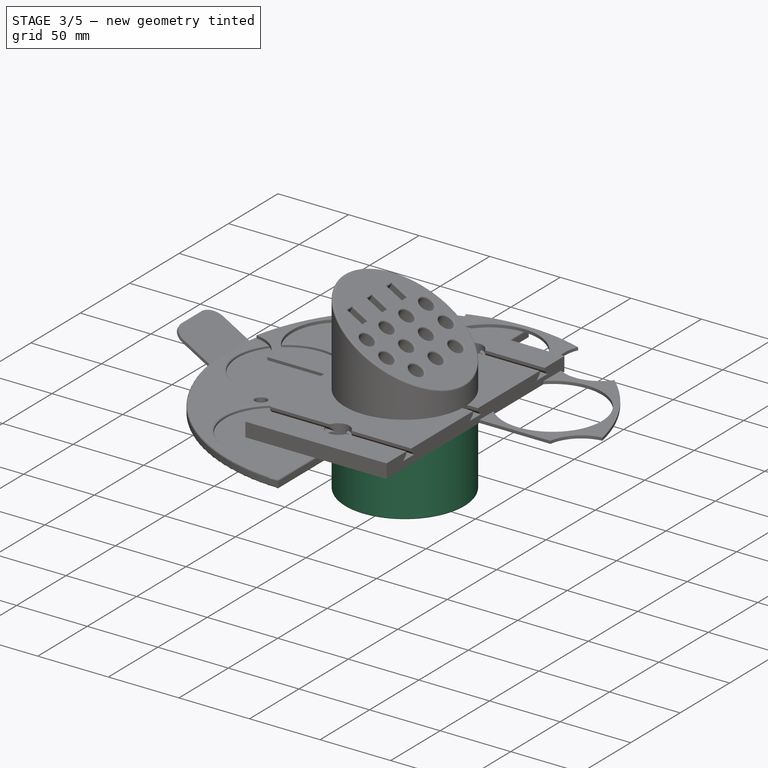
[diagram: stage 3 of 5 — iso view after this stage's code; geometry added in this stage tinted green]
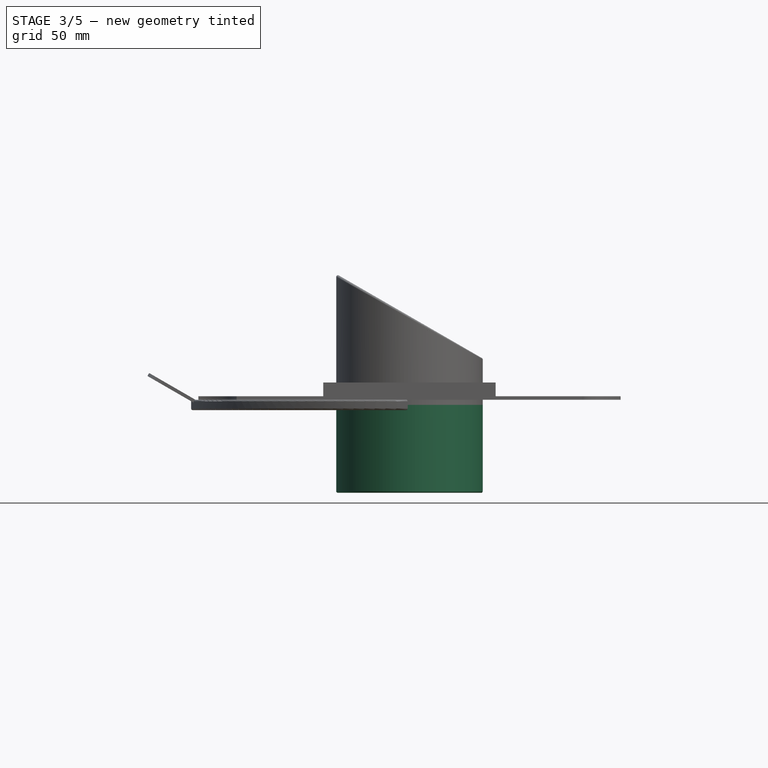
[diagram: stage 3 of 5 — front view after this stage's code; geometry added in this stage tinted green]
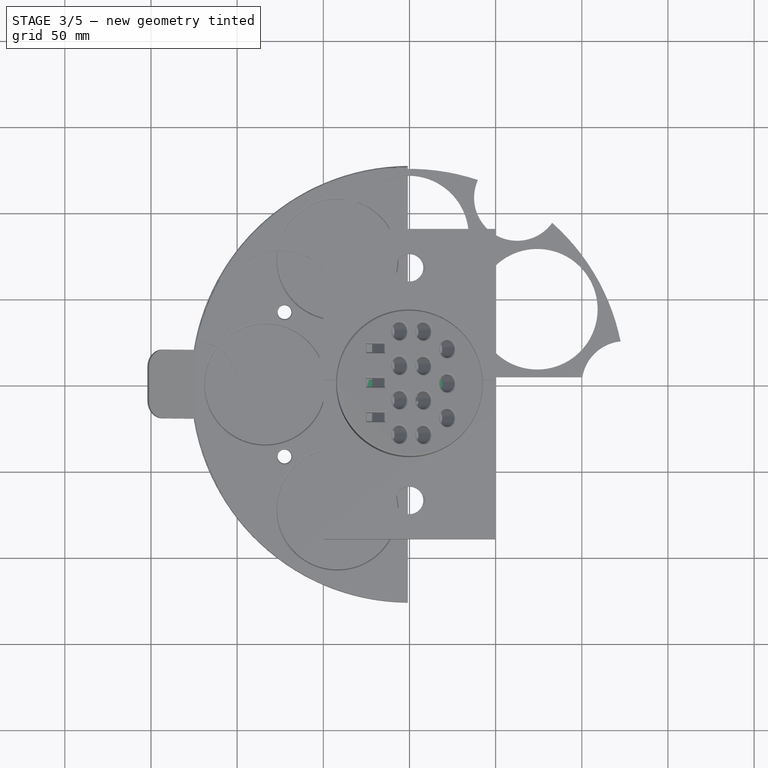
[diagram: stage 3 of 5 — top view after this stage's code; geometry added in this stage tinted green]
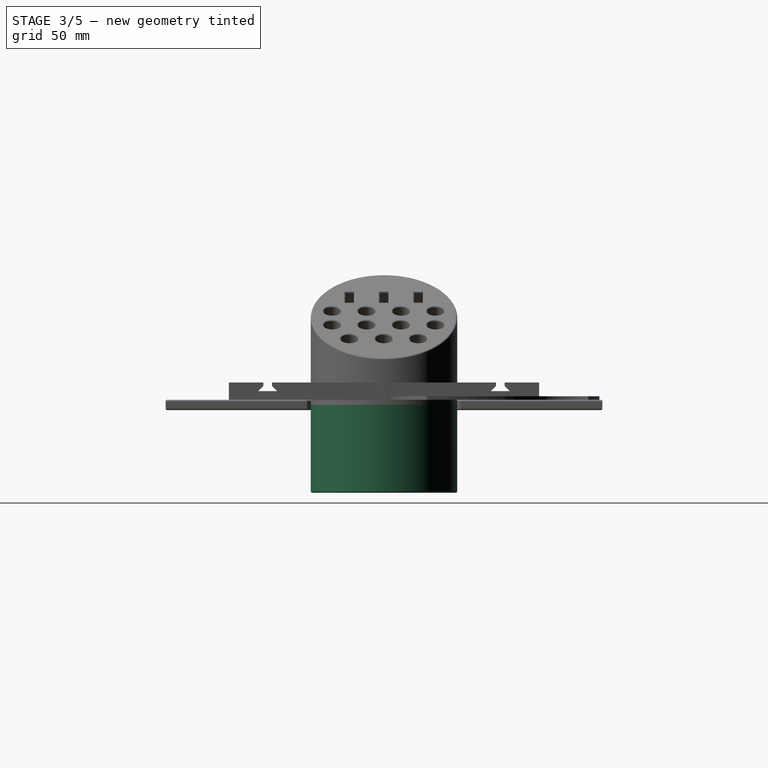
[diagram: stage 3 of 5 — right view after this stage's code; geometry added in this stage tinted green]
FEATURE [PartDesign::Body] Body005  label="Petri Dish Insert"
  AutoGroupSolids = false
  ClaimAllChildren = false
  ExportMode = 0
  Group = -> [Sketch016,Pad004,PolarPattern004,Sketch017,Pad005,Chamfer,PolarPattern005,Sketch018,Pocket002,PolarPattern006]
  InvalidShape = false
  Origin = -> Origin005
  Tip = -> PolarPattern006
  TreeRank = 108
  ValidateShape = true
  _ExportChildren = -> [Pad004,PolarPattern004,Pad005,Chamfer,PolarPattern005,Pocket002,PolarPattern006]
  _GroupVersion = 1
FEATURE [Sketcher::SketchObject] Sketch019
  ArcFitTolerance = 1e-06
  AttachmentSupport = -> [XY_Plane006]
  ExternalBSplineMaxDegree = 5
  ExternalBSplineTolerance = 0.0001
  FullyConstrained = true
  InternalTolerance = 1e-06
  InvalidShape = false
  MakeInternals = false
  MapMode = 5
  Support = -> [XY_Plane006]
  TreeRank = 130
  ValidateShape = true
  expr: Constraints[1] = <<Parameters>>.tool_holder_diameter
  sketch-geometry (1):
    g0: Circle CenterX=0 CenterY=0 CenterZ=0 NormalX=0 NormalY=0 NormalZ=1 AngleXU=0 Radius=42.5
  constraints (2):
    c: Coincident(g0,g-1)
    c: Diameter(g0) = 85
FEATURE [Sketcher::SketchObject] Sketch020
  ArcFitTolerance = 1e-06
  AttachmentSupport = -> [XZ_Plane006]
  ExternalBSplineMaxDegree = 5
  ExternalBSplineTolerance = 0.0001
  FullyConstrained = true
  InternalTolerance = 1e-06
  InvalidShape = false
  MakeInternals = false
  MapMode = 5
  Placement = pos=(0,0,0) rot=(1,0,0;1.5708rad)
  Support = -> [XZ_Plane006]
  TreeRank = 132
  ValidateShape = true
  expr: Constraints[10] = <<Parameters>>.thread_pitch * 2
  expr: Constraints[11] = (<<Parameters>>.tool_holder_diameter - 2 * <<Parameters>>.thickness - 2 * <<Parameters>>.thread_tolerance) / 2
  expr: Constraints[7] = <<Parameters>>.thread_depth * 1.1
  expr: Constraints[8] = <<Parameters>>.thread_pitch / 1.9
  expr: Constraints[9] = 90 - <<Parameters>>.thread_angle
  sketch-geometry (4):
    g0: LineSegment StartX=-39.5 StartY=10.1053 StartZ=0 EndX=-39.5 EndY=8 EndZ=0
    g1: LineSegment StartX=-39.5 StartY=10.1053 StartZ=0 EndX=-37.85 EndY=9.33586 EndZ=0
    g2: LineSegment StartX=-39.5 StartY=8 StartZ=0 EndX=-37.85 EndY=8.76941 EndZ=0
    g3: LineSegment StartX=-37.85 StartY=8.76941 StartZ=0 EndX=-37.85 EndY=9.33586 EndZ=0
  constraints (12):
    c: Vertical(g0)
    c: Coincident(g1,g0)
    c: Coincident(g2,g0)
    c: Coincident(g3,g2)
    c: Coincident(g3,g1)
    c: Vertical(g3)
    c: Equal(g1,g2)
    c: DistanceX(g0,g1) = 1.65
    c: DistanceY(g0,g0) = 2.10526
    c: Angle(g0,g1) = 1.13446
    c: DistanceY(g-1,g0) = 8
    c: DistanceX(g0,g-1) = 39.5
FEATURE [PartDesign::Pad] Pad006
  AddSubType = 0
  AlongSketchNormal = false
  AutoTaperInnerAngle = true
  CheckUpToFaceLimits = true
  ClaimChildren = false
  Direction = (0,0,1)
  Fit = 0
  FitJoin = 0
  InnerFit = 0
  InnerFitJoin = 0
  InvalidShape = false
  Length = 8
  Length2 = 52
  Linearize = true
  NewSolid = false
  Profile = -> Sketch019
  Suppress = false
  TaperInnerAngle = 0
  TaperInnerAngleRev = 0
  TreeRank = 133
  Type = 4
  ValidateShape = true
  _ProfileBasedVersion = 1
  expr: Length = <<Parameters>>.thread_pitch * 2
  expr: Length2 = <<Parameters>>.tool_holder_base_height - <<Parameters>>.thread_pitch * 2
FEATURE [Sketcher::SketchObject] Sketch021
  ArcFitTolerance = 1e-06
  ExternalBSplineMaxDegree = 5
  ExternalBSplineTolerance = 0.0001
  FullyConstrained = true
  InternalTolerance = 1e-06
  InvalidShape = false
  MakeInternals = false
  MapMode = 2
  TreeRank = 134
  ValidateShape = true
  expr: Constraints[1] = <<Parameters>>.tool_holder_diameter - 2 * <<Parameters>>.thickness - 2 * <<Parameters>>.thread_tolerance
  expr: Constraints[3] = <<Parameters>>.tool_holder_diameter * 2
  sketch-geometry (2):
    g0: Circle CenterX=0 CenterY=0 CenterZ=0 NormalX=0 NormalY=0 NormalZ=1 AngleXU=0 Radius=39.5
    g1: Circle CenterX=0 CenterY=0 CenterZ=0 NormalX=0 NormalY=0 NormalZ=1 AngleXU=0 Radius=85
  constraints (4):
    c: Coincident(g0,g-1)
    c: Diameter(g0) = 79
    c: Coincident(g1,g0)
    c: Diameter(g1) = 170
FEATURE [PartDesign::Pocket] Pocket003
  AddSubType = 1
  AutoTaperInnerAngle = true
  BaseFeature = -> Pad006
  CheckUpToFaceLimits = true
  ClaimChildren = false
  Fit = 0
  FitJoin = 0
  InnerFit = 0
  InnerFitJoin = 0
  InvalidShape = false
  Length = 8
  Length2 = 100
  Linearize = true
  NewSolid = false
  Profile = -> Sketch021
  Reversed = true
  Suppress = false
  TaperInnerAngle = 0
  TaperInnerAngleRev = 0
  TreeRank = 135
  Type = 0
  ValidateShape = true
  _ProfileBasedVersion = 1
  _Version = 1
  expr: Length = <<Parameters>>.thread_pitch * 2
FEATURE [PartDesign::SubtractiveHelix] Helix
  AddSubType = 1
  Angle = 0
  Axis = (0,2e-16,1)
  Base = (0,0,0)
  BaseFeature = -> Pocket003
  ClaimChildren = false
  Fit = 0
  FitJoin = 0
  Growth = 0
  HasBeenEdited = true
  Height = 8
  InnerFit = 0
  InnerFitJoin = 0
  InvalidShape = false
  LeftHanded = false
  Linearize = true
  Mode = 1
  NewSolid = false
  Outside = false
  Pitch = 4
  Profile = -> Sketch020
  ReferenceAxis = -> Sketch020 [V_Axis]
  Reversed = true
  Suppress = false
  TreeRank = 136
  Turns = 2
  ValidateShape = true
  _ProfileBasedVersion = 1
  expr: Pitch = <<Parameters>>.thread_pitch
FEATURE [Sketcher::SketchObject] Sketch022
  ArcFitTolerance = 1e-06
  ExternalBSplineMaxDegree = 5
  ExternalBSplineTolerance = 0.0001
  FullyConstrained = true
  InternalTolerance = 1e-06
  InvalidShape = false
  MakeInternals = false
  MapMode = 2
  Placement = pos=(0,0,-2) rot=(0,0,1;0rad)
  TreeRank = 137
  ValidateShape = true
  expr: Placement.Base.z = -<<Parameters>>.thickness
  expr: Constraints[1] = <<Parameters>>.tool_holder_diameter - 2 * <<Parameters>>.thickness - 2 * <<Parameters>>.thread_depth
  sketch-geometry (1):
    g0: Circle CenterX=0 CenterY=0 CenterZ=0 NormalX=0 NormalY=0 NormalZ=1 AngleXU=0 Radius=39
  constraints (2):
    c: Coincident(g0,g-1)
    c: Diameter(g0) = 78
FEATURE [PartDesign::Pocket] Pocket004
  AddSubType = 1
  AutoTaperInnerAngle = true
  BaseFeature = -> Helix
  CheckUpToFaceLimits = true
  ClaimChildren = false
  Fit = 0
  FitJoin = 0
  InnerFit = 0
  InnerFitJoin = 0
  InvalidShape = false
  Length = 60
  Length2 = 100
  Linearize = true
  NewSolid = false
  Profile = -> Sketch022
  Suppress = false
  TaperInnerAngle = 0
  TaperInnerAngleRev = 0
  TreeRank = 138
  Type = 0
  ValidateShape = true
  _ProfileBasedVersion = 1
  _Version = 1
  expr: Length = <<Parameters>>.tool_holder_base_height
FEATURE [Sketcher::SketchObject] Sketch023
  ArcFitTolerance = 1e-06
  AttachmentSupport = -> [XZ_Plane006]
  ExternalBSplineMaxDegree = 5
  ExternalBSplineTolerance = 0.0001
  FullyConstrained = true
  InternalTolerance = 1e-06
  InvalidShape = false
  MakeInternals = false
  MapMode = 5
  Placement = pos=(0,0,0) rot=(1,0,0;1.5708rad)
  Support = -> [XZ_Plane006]
  TreeRank = 139
  ValidateShape = true
  expr: Constraints[10] = (<<Parameters>>.tool_holder_diameter - 2 * <<Parameters>>.thickness - 2 * <<Parameters>>.thread_depth) / 2
  expr: Constraints[11] = <<Parameters>>.tool_holder_base_height - 2 * <<Parameters>>.thread_pitch
  expr: Constraints[7] = <<Parameters>>.thread_depth * 1.1
  expr: Constraints[8] = <<Parameters>>.thread_pitch / 1.9
  expr: Constraints[9] = 90 - <<Parameters>>.thread_angle
  sketch-geometry (4):
    g0: LineSegment StartX=-39 StartY=-52 StartZ=0 EndX=-39 EndY=-54.1053 EndZ=0
    g1: LineSegment StartX=-39 StartY=-52 StartZ=0 EndX=-40.65 EndY=-52.7694 EndZ=0
    g2: LineSegment StartX=-39 StartY=-54.1053 StartZ=0 EndX=-40.65 EndY=-53.3359 EndZ=0
    g3: LineSegment StartX=-40.65 StartY=-53.3359 StartZ=0 EndX=-40.65 EndY=-52.7694 EndZ=0
  constraints (12):
    c: Vertical(g0)
    c: Coincident(g1,g0)
    c: Coincident(g2,g0)
    c: Coincident(g3,g2)
    c: Coincident(g3,g1)
    c: Vertical(g3)
    c: Equal(g1,g2)
    c: DistanceX(g1,g0) = 1.65
    c: DistanceY(g0,g0) = 2.10526
    c: Angle(g1,g0) = 1.13446
    c: DistanceX(g0,g-1) = 39
    c: DistanceY(g0,g-1) = 52
FEATURE [PartDesign::SubtractiveHelix] Helix001
  AddSubType = 1
  Angle = 0
  Axis = (0,0,1)
  Base = (0,0,0)
  BaseFeature = -> Pocket004
  ClaimChildren = false
  Fit = 0
  FitJoin = 0
  Growth = 0
  HasBeenEdited = true
  Height = 13
  InnerFit = 0
  InnerFitJoin = 0
  InvalidShape = false
  LeftHanded = false
  Linearize = true
  Mode = 1
  NewSolid = false
  Outside = false
  Pitch = 4
  Profile = -> Sketch023
  ReferenceAxis = -> Sketch023 [V_Axis]
  Suppress = false
  TreeRank = 140
  Turns = 3.25
  ValidateShape = true
  _ProfileBasedVersion = 1
  expr: Pitch = <<Parameters>>.thread_pitch
FEATURE [PartDesign::Chamfer] Chamfer001
  AddSubType = 0
  Angle = 45
  Base = -> Helix001 [Edge3]
  BaseFeature = -> Helix001
  ChamferType = 0
  FlipDirection = false
  InvalidShape = false
  NewSolid = false
  Size = 2.99
  Size2 = 1
  SupportTransform = false
  Suppress = false
  TreeRank = 141
  ValidateShape = true
FEATURE [Sketcher::SketchObject] Sketch024
  ArcFitTolerance = 1e-06
  ExternalBSplineMaxDegree = 5
  ExternalBSplineTolerance = 0.0001
  FullyConstrained = true
  InternalTolerance = 1e-06
  InvalidShape = false
  MakeInternals = false
  MapMode = 2
  TreeRank = 142
  ValidateShape = true
  expr: Constraints[1] = <<Parameters>>.tool_holder_diameter - 2 * <<Parameters>>.thickness - 2 * <<Parameters>>.thread_tolerance - 2 * <<Parameters>>.thread_depth - 2 * <<Parameters>>.thickness
  sketch-geometry (1):
    g0: Circle CenterX=0 CenterY=0 CenterZ=0 NormalX=0 NormalY=0 NormalZ=1 AngleXU=0 Radius=36
  constraints (2):
    c: Coincident(g0,g-1)
    c: Diameter(g0) = 72
FEATURE [PartDesign::Pocket] Pocket005
  AddSubType = 1
  AutoTaperInnerAngle = true
  BaseFeature = -> Chamfer001
  CheckUpToFaceLimits = true
  ClaimChildren = false
  Fit = 0
  FitJoin = 0
  InnerFit = 0
  InnerFitJoin = 0
  InvalidShape = false
  Length = 6
  Length2 = 100
  Linearize = true
  NewSolid = false
  Profile = -> Sketch024
  Reversed = true
  Suppress = false
  TaperInnerAngle = 0
  TaperInnerAngleRev = 0
  TreeRank = 143
  Type = 4
  ValidateShape = true
  _ProfileBasedVersion = 1
  _Version = 1
  expr: Length = <<Parameters>>.thread_pitch * 2 - <<Parameters>>.thickness
FEATURE [PartDesign::Chamfer] Chamfer002
  AddSubType = 0
  Angle = 45
  Base = -> Pocket005 [Edge74]
  BaseFeature = -> Pocket005
  ChamferType = 0
  FlipDirection = false
  InvalidShape = false
  NewSolid = false
  Size = 2.98
  Size2 = 1
  SupportTransform = false
  Suppress = false
  TreeRank = 144
  ValidateShape = true
FEATURE [Sketcher::SketchObject] Sketch031
  ArcFitTolerance = 1e-06
  AttachmentSupport = -> [XZ_Plane008]
  ExternalBSplineMaxDegree = 5
  ExternalBSplineTolerance = 0.0001
  FullyConstrained = true
  InternalTolerance = 1e-06
  InvalidShape = false
  MakeInternals = false
  MapMode = 5
  Placement = pos=(0,0,0) rot=(1,0,0;1.5708rad)
  Support = -> [XZ_Plane008]
  TreeRank = 185
  ValidateShape = true
  expr: Constraints[10] = <<Parameters>>.thickness
  expr: Constraints[11] = <<Parameters>>.tool_holder_diameter + 2 * <<Parameters>>.thickness
  expr: Constraints[17] = <<Parameters>>.thread_pitch * 3
  expr: Constraints[24] = <<Parameters>>.thickness
  expr: Constraints[25] = <<Parameters>>.tool_holder_diameter / 2
  expr: Constraints[2] = <<Parameters>>.tool_holder_diameter
  expr: Constraints[3] = <<Parameters>>.tool_holder_base_height - <<Parameters>>.thread_pitch * 2
  expr: Constraints[4] = (<<Parameters>>.tool_holder_diameter - 2 * <<Parameters>>.thickness - 2 * <<Parameters>>.thread_depth) / 2 - <<Parameters>>.thread_tolerance
  expr: Constraints[9] = <<Parameters>>.thickness
  sketch-geometry (10):
    g0: LineSegment StartX=-38 StartY=-52 StartZ=0 EndX=-38 EndY=-40 EndZ=0
    g1: ArcOfCircle CenterX=0 CenterY=-82 CenterZ=0 NormalX=0 NormalY=0 NormalZ=1 AngleXU=0 Radius=42.5 StartAngle=1.5708 EndAngle=2.42234
    g2: LineSegment StartX=-38 StartY=-40 StartZ=0 EndX=-36 EndY=-40 EndZ=0
    g3: LineSegment StartX=-36 StartY=-40 StartZ=0 EndX=-36 EndY=-50 EndZ=0
    g4: ArcOfCircle CenterX=0 CenterY=-82 CenterZ=0 NormalX=0 NormalY=0 NormalZ=1 AngleXU=0 Radius=44.5 StartAngle=1.5708 EndAngle=2.33908
    g5: LineSegment StartX=-36 StartY=-50 StartZ=0 EndX=-30.9233 EndY=-50 EndZ=0
    g6: LineSegment StartX=0 StartY=-37.5 StartZ=0 EndX=0 EndY=-39.5 EndZ=0
    g7: LineSegment StartX=-38 StartY=-52 StartZ=0 EndX=-42.5 EndY=-52 EndZ=0
    g8: LineSegment StartX=-42.5 StartY=-52 StartZ=0 EndX=-42.5 EndY=-54 EndZ=0
    g9: LineSegment StartX=-42.5 StartY=-54 StartZ=0 EndX=-31.9726 EndY=-54 EndZ=0
  constraints (31):
    c: Vertical(g0)
    c: PointOnObject(g1,g-2)
    c: Diameter(g1) = 85
    c: DistanceY(g0,g-1) = 52
    c: DistanceX(g0,g-1) = 38
    c: Coincident(g2,g0)
    c: Horizontal(g2)
    c: Coincident(g3,g2)
    c: Vertical(g3)
    c: DistanceX(g0,g2) = 2
    c: DistanceY(g0,g3) = 2
    c: Diameter(g4) = 89
    c: Coincident(g4,g1)
    c: Coincident(g5,g3)
    c: Horizontal(g5)
    c: Vertical(g6)
    c: PointOnObject(g6,g-2)
    c: DistanceY(g0,g0) = 12
    c: Coincident(g7,g0)
    c: Horizontal(g7)
    c: Coincident(g8,g7)
    c: Vertical(g8)
    c: Coincident(g9,g8)
    c: Horizontal(g9)
    c: DistanceY(g8,g7) = 2
    c: DistanceX(g8,g-1) = 42.5
    c: Coincident(g4,g6)
    c: Coincident(g1,g9)
    c: Coincident(g1,g6)
    c: Coincident(g4,g5)
    c: DistanceY(g1,g-1) = 82
FEATURE [PartDesign::Revolution] Revolution005
  AddSubType = 0
  Angle = 360
  Axis = (0,2e-16,1)
  Base = (0,0,0)
  ClaimChildren = false
  Fit = 0
  FitJoin = 0
  InnerFit = 0
  InnerFitJoin = 0
  InvalidShape = false
  Linearize = true
  NewSolid = false
  Profile = -> Sketch031
  ReferenceAxis = -> Sketch031 [V_Axis]
  Suppress = false
  TreeRank = 186
  ValidateShape = true
  _ProfileBasedVersion = 1
FEATURE [Sketcher::SketchObject] Sketch032
  ArcFitTolerance = 1e-06
  AttachmentSupport = -> [XZ_Plane008]
  ExternalBSplineMaxDegree = 5
  ExternalBSplineTolerance = 0.0001
  FullyConstrained = true
  InternalTolerance = 1e-06
  InvalidShape = false
  MakeInternals = false
  MapMode = 5
  Placement = pos=(0,0,0) rot=(1,0,0;1.5708rad)
  Support = -> [XZ_Plane008]
  TreeRank = 187
  ValidateShape = true
  expr: Constraints[10] = (<<Parameters>>.tool_holder_diameter - 2 * <<Parameters>>.thickness - 2 * <<Parameters>>.thread_depth) / 2 - <<Parameters>>.thread_tolerance
  expr: Constraints[11] = <<Parameters>>.tool_holder_base_height - <<Parameters>>.thread_pitch * 2 - <<Parameters>>.thread_pitch * 3
  expr: Constraints[7] = <<Parameters>>.thread_pitch / 2.1
  expr: Constraints[8] = <<Parameters>>.thread_depth
  expr: Constraints[9] = 90 - <<Parameters>>.thread_angle
  sketch-geometry (4):
    g0: LineSegment StartX=-39.5 StartY=-40.6995 StartZ=0 EndX=-39.5 EndY=-41.2053 EndZ=0
    g1: LineSegment StartX=-39.5 StartY=-41.2053 StartZ=0 EndX=-38 EndY=-41.9048 EndZ=0
    g2: LineSegment StartX=-39.5 StartY=-40.6995 StartZ=0 EndX=-38 EndY=-40 EndZ=0
    g3: LineSegment StartX=-38 StartY=-40 StartZ=0 EndX=-38 EndY=-41.9048 EndZ=0
  constraints (12):
    c: Vertical(g0)
    c: Coincident(g1,g0)
    c: Coincident(g2,g0)
    c: Coincident(g3,g2)
    c: Vertical(g3)
    c: Coincident(g1,g3)
    c: Equal(g2,g1)
    c: DistanceY(g1,g2) = 1.90476
    c: DistanceX(g0,g2) = 1.5
    c: Angle(g2,g3) = 1.13446
    c: DistanceX(g2,g-1) = 38
    c: DistanceY(g2,g-1) = 40
FEATURE [PartDesign::AdditiveHelix] Helix003
  AddSubType = 0
  Angle = 0
  Axis = (0,2e-16,1)
  Base = (0,0,0)
  BaseFeature = -> Revolution005
  ClaimChildren = false
  Fit = 0
  FitJoin = 0
  Growth = 0
  HasBeenEdited = true
  Height = 12
  InnerFit = 0
  InnerFitJoin = 0
  InvalidShape = false
  LeftHanded = false
  Linearize = true
  Mode = 1
  NewSolid = false
  Outside = false
  Pitch = 4
  Profile = -> Sketch032
  ReferenceAxis = -> Sketch032 [V_Axis]
  Reversed = true
  Suppress = false
  TreeRank = 188
  Turns = 3
  ValidateShape = true
  _ProfileBasedVersion = 1
  expr: Pitch = <<Parameters>>.thread_pitch
FEATURE [Sketcher::SketchObject] Sketch033
  ArcFitTolerance = 1e-06
  AttachmentSupport = -> [XZ_Plane008]
  ExternalBSplineMaxDegree = 5
  ExternalBSplineTolerance = 0.0001
  FullyConstrained = true
  InternalTolerance = 1e-06
  InvalidShape = false
  MakeInternals = false
  MapMode = 5
  Placement = pos=(0,0,0) rot=(1,0,0;1.5708rad)
  Support = -> [XZ_Plane008]
  TreeRank = 189
  ValidateShape = true
  expr: Constraints[1] = <<Parameters>>.tool_holder_diameter + 2 * <<Parameters>>.thickness
  expr: Constraints[7] = <<Parameters>>.tool_holder_base_height - <<Parameters>>.thread_pitch * 2 + <<Parameters>>.thickness
  sketch-geometry (3):
    g0: ArcOfCircle CenterX=0 CenterY=-82 CenterZ=0 NormalX=0 NormalY=0 NormalZ=1 AngleXU=0 Radius=44.5 StartAngle=1.5708 EndAngle=2.46105
    g1: LineSegment StartX=-34.5868 StartY=-54 StartZ=0 EndX=0 EndY=-54 EndZ=0
    g2: LineSegment StartX=0 StartY=-54 StartZ=0 EndX=0 EndY=-37.5 EndZ=0
  constraints (10):
    c: PointOnObject(g0,g-2)
    c: Diameter(g0) = 89
    c: DistanceY(g0,g-1) = 82
    c: PointOnObject(g1,g-2)
    c: Horizontal(g1)
    c: Coincident(g2,g1)
    c: PointOnObject(g2,g-2)
    c: DistanceY(g1,g-1) = 54
    c: Coincident(g0,g1)
    c: Coincident(g0,g2)
FEATURE [PartDesign::Pad] Pad010
  AddSubType = 0
  AlongSketchNormal = false
  AutoTaperInnerAngle = true
  BaseFeature = -> Helix003
  CheckUpToFaceLimits = true
  ClaimChildren = false
  Direction = (0,-1,2e-16)
  Fit = 0
  FitJoin = 0
  InnerFit = 0
  InnerFitJoin = 0
  InvalidShape = false
  Length = 2
  Length2 = 2
  Linearize = true
  NewSolid = false
  Profile = -> Sketch033
  Suppress = false
  TaperInnerAngle = 0
  TaperInnerAngleRev = 0
  TreeRank = 190
  Type = 4
  ValidateShape = true
  _ProfileBasedVersion = 1
  expr: Length = <<Parameters>>.thickness
  expr: Length2 = <<Parameters>>.thickness
FEATURE [PartDesign::PolarPattern] PolarPattern007
  AddSubType = 0
  Angle = 360
  Axis = -> Sketch033 [V_Axis]
  BaseFeature = -> Pad010
  CopyShape = false
  InvalidShape = false
  NewSolid = false
  Occurrences = 4
  OriginalSubs = -> [Pad010]
  Originals = -> [Pad010]
  ParallelTransform = true
  SubTransform = true
  Suppress = false
  TreeRank = 191
  ValidateShape = true
  _Version = 3
FEATURE [PartDesign::Fillet] Fillet005
  AddSubType = 0
  Base = -> PolarPattern007 [Edge34,Edge30,Edge38,Edge50,Edge42,Edge46]
  BaseFeature = -> PolarPattern007
  InvalidShape = false
  NewSolid = false
  Radius = 1
  SupportTransform = false
  Suppress = false
  TreeRank = 192
  ValidateShape = true
FEATURE [PartDesign::Body] Body008  label="Tool Pedistal Bottom"
  AutoGroupSolids = false
  ClaimAllChildren = false
  ExportMode = 0
  Group = -> [Sketch031,Revolution005,Sketch032,Helix003,Sketch033,Pad010,PolarPattern007,Fillet005]
  InvalidShape = false
  Origin = -> Origin008
  Tip = -> Fillet005
  TreeRank = 184
  ValidateShape = true
  _ExportChildren = -> [Revolution005,Helix003,Pad010,PolarPattern007,Fillet005]
  _GroupVersion = 1
FEATURE [PartDesign::Fillet] Fillet006
  AddSubType = 0
  Base = -> Pocket008 [Edge214,Edge218,Edge236,Edge234,Edge232,Edge216,Edge212,Edge208,Edge210,Edge228,Edge230,Edge157,Edge159,Edge155,Edge160,Edge223,Edge225,Edge221,Edge226,Edge165,Edge167,Edge163,Edge168,Edge204,Edge206]
  BaseFeature = -> Pocket008
  InvalidShape = false
  NewSolid = false
  Radius = 1
  SupportTransform = false
  Suppress = false
  TreeRank = 193
  ValidateShape = true
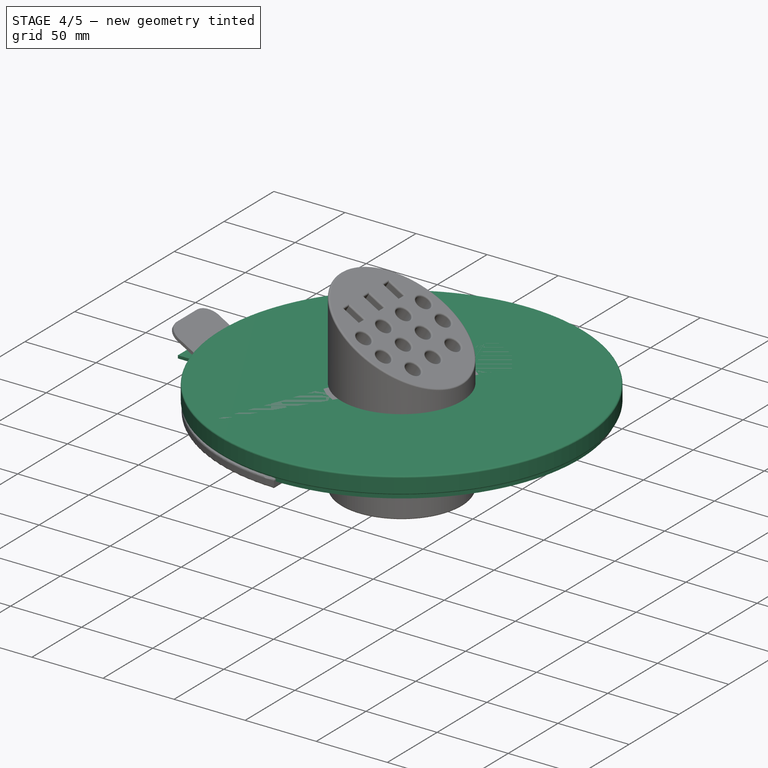
[diagram: stage 4 of 5 — iso view after this stage's code; geometry added in this stage tinted green]
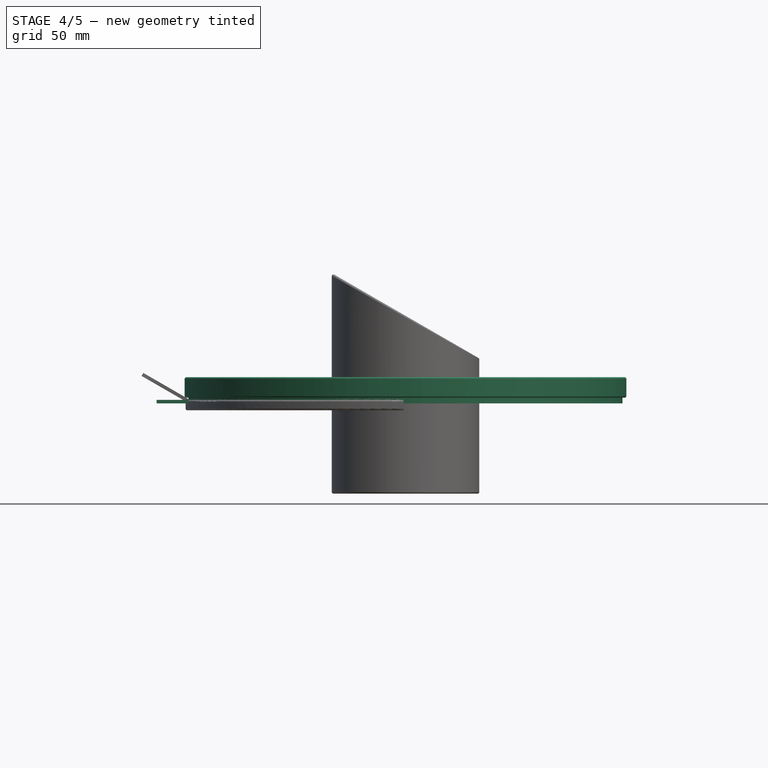
[diagram: stage 4 of 5 — front view after this stage's code; geometry added in this stage tinted green]
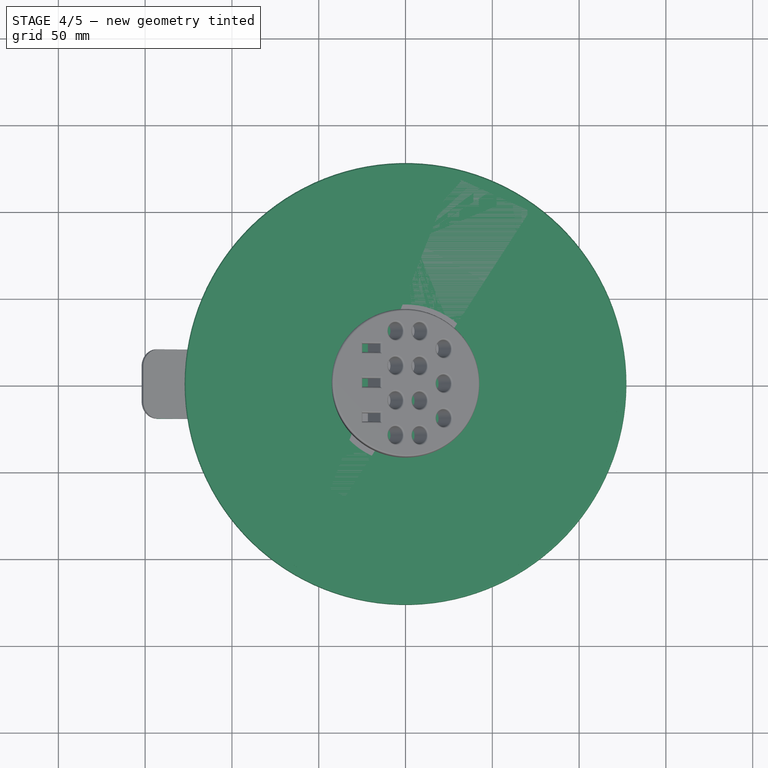
[diagram: stage 4 of 5 — top view after this stage's code; geometry added in this stage tinted green]
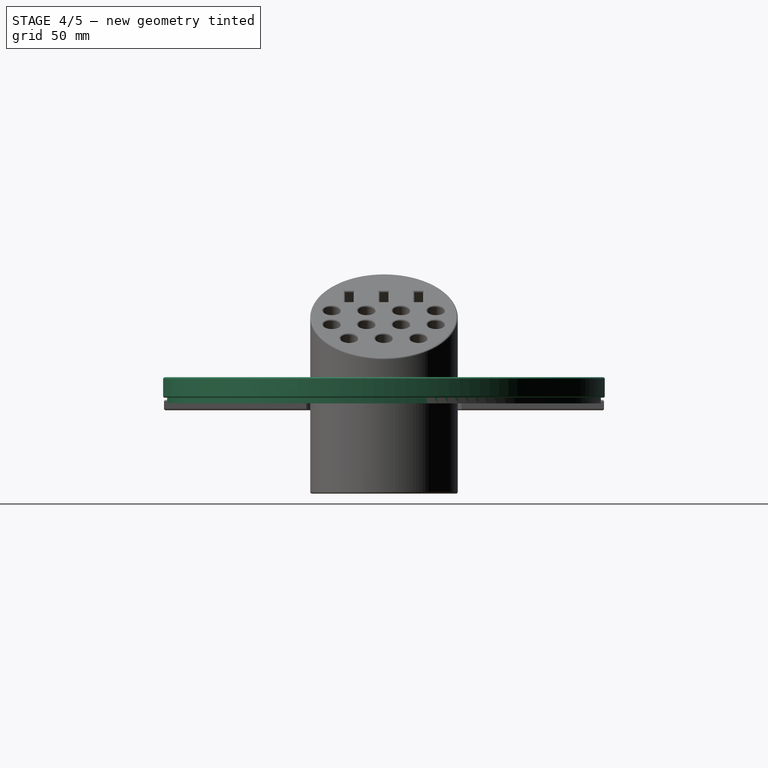
[diagram: stage 4 of 5 — right view after this stage's code; geometry added in this stage tinted green]
FEATURE [PartDesign::Body] Body  label="Roller"
  AutoGroupSolids = false
  ClaimAllChildren = false
  ExportMode = 0
  Group = -> [Sketch,Pad,Fillet,Fillet001,Sketch001,Groove]
  InvalidShape = false
  Origin = -> Origin
  Tip = -> Groove
  TreeRank = 11
  ValidateShape = true
  _ExportChildren = -> [Pad,Fillet,Fillet001,Groove]
  _GroupVersion = 1
FEATURE [Sketcher::SketchObject] Sketch009
  ArcFitTolerance = 1e-06
  AttachmentSupport = -> [XZ_Plane002]
  ExternalBSplineMaxDegree = 5
  ExternalBSplineTolerance = 0.0001
  FullyConstrained = true
  InternalTolerance = 1e-06
  InvalidShape = false
  MakeInternals = false
  MapMode = 5
  Placement = pos=(0,0,0) rot=(1,0,0;1.5708rad)
  Support = -> [XZ_Plane002]
  TreeRank = 58
  ValidateShape = true
  expr: Constraints[16] = <<Parameters>>.thickness
  expr: Constraints[17] = <<Parameters>>.thickness
  expr: Constraints[18] = <<Parameters>>.thickness
  expr: Constraints[19] = <<Parameters>>.roller_cage_height - 4 * <<Parameters>>.tolerance - <<Parameters>>.thickness
  expr: Constraints[20] = <<Parameters>>.roller_cage_max_diameter / 2 + <<Parameters>>.tolerance
  expr: Constraints[21] = <<Parameters>>.roller_cage_min_diameter / 2 - <<Parameters>>.tolerance
  expr: Constraints[23] = (<<Parameters>>.roller_cage_height - 4 * <<Parameters>>.tolerance) / 3
  sketch-geometry (8):
    g0: LineSegment StartX=-123 StartY=8.56879 StartZ=0 EndX=-123 EndY=0 EndZ=0
    g1: LineSegment StartX=-123 StartY=8.56879 StartZ=0 EndX=-125 EndY=8.56879 EndZ=0
    g2: LineSegment StartX=-125 StartY=8.56879 StartZ=0 EndX=-125 EndY=-2 EndZ=0
    g3: LineSegment StartX=-125 StartY=-2 StartZ=0 EndX=-100 EndY=-2 EndZ=0
    g4: LineSegment StartX=-100 StartY=-2 StartZ=0 EndX=-100 EndY=3.52293 EndZ=0
    g5: LineSegment StartX=-100 StartY=3.52293 StartZ=0 EndX=-102 EndY=3.52293 EndZ=0
    g6: LineSegment StartX=-102 StartY=3.52293 StartZ=0 EndX=-102 EndY=0 EndZ=0
    g7: LineSegment StartX=-102 StartY=0 StartZ=0 EndX=-123 EndY=0 EndZ=0
  constraints (24):
    c: PointOnObject(g0,g-1)
    c: Vertical(g0)
    c: Coincident(g1,g0)
    c: Horizontal(g1)
    c: Coincident(g2,g1)
    c: Vertical(g2)
    c: Coincident(g3,g2)
    c: Horizontal(g3)
    c: Coincident(g4,g3)
    c: Vertical(g4)
    c: Coincident(g5,g4)
    c: Coincident(g6,g5)
    c: PointOnObject(g6,g-1)
    c: Vertical(g6)
    c: Coincident(g7,g6)
    c: Coincident(g7,g0)
    c: DistanceX(g1,g0) = 2
    c: DistanceY(g2,g0) = 2
    c: DistanceX(g6,g3) = 2
    c: DistanceY(g0,g0) = 8.56879
    c: DistanceX(g0,g-1) = 123
    c: DistanceX(g6,g-1) = 102
    c: Horizontal(g5)
    c: DistanceY(g6,g5) = 3.52293
FEATURE [PartDesign::Revolution] Revolution002
  AddSubType = 0
  Angle = 360
  Axis = (0,2e-16,1)
  Base = (0,0,0)
  ClaimChildren = false
  Fit = 0
  FitJoin = 0
  InnerFit = 0
  InnerFitJoin = 0
  InvalidShape = false
  Linearize = true
  NewSolid = false
  Profile = -> Sketch009
  ReferenceAxis = -> Sketch009 [V_Axis]
  Suppress = false
  TreeRank = 59
  ValidateShape = true
  _ProfileBasedVersion = 1
FEATURE [Sketcher::SketchObject] Sketch010
  ArcFitTolerance = 1e-06
  AttachmentSupport = -> [XY_Plane002]
  ExternalBSplineMaxDegree = 5
  ExternalBSplineTolerance = 0.0001
  FullyConstrained = true
  InternalTolerance = 1e-06
  InvalidShape = false
  MakeInternals = false
  MapMode = 5
  Support = -> [XY_Plane002]
  TreeRank = 60
  ValidateShape = true
  expr: Constraints[13] = <<Parameters>>.handle_width
  expr: Constraints[14] = <<Parameters>>.handle_length
  expr: Constraints[16] = <<Parameters>>.handle_hole_diameter
  expr: Constraints[1] = <<Parameters>>.roller_cage_max_diameter + 2 * <<Parameters>>.tolerance + 2 * <<Parameters>>.thickness
  sketch-geometry (7):
    g0: Circle [constr] CenterX=0 CenterY=0 CenterZ=0 NormalX=0 NormalY=0 NormalZ=1 AngleXU=0 Radius=125
    g1: LineSegment StartX=-143.39 StartY=-20 StartZ=0 EndX=-143.39 EndY=20 EndZ=0
    g2: LineSegment StartX=-143.39 StartY=20 StartZ=0 EndX=-123.39 EndY=20 EndZ=0
    g3: LineSegment StartX=-123.39 StartY=20 StartZ=0 EndX=-123.39 EndY=-20 EndZ=0
    g4: LineSegment StartX=-123.39 StartY=-20 StartZ=0 EndX=-143.39 EndY=-20 EndZ=0
    g5: GeomPoint [constr] X=-133.39 Y=0 Z=0
    g6: Circle CenterX=-133.39 CenterY=0 CenterZ=0 NormalX=0 NormalY=0 NormalZ=1 AngleXU=0 Radius=4
  constraints (17):
    c: Coincident(g0,g-1)
    c: Diameter(g0) = 250
    c: Coincident(g1,g2)
    c: Coincident(g2,g3)
    c: Coincident(g3,g4)
    c: Coincident(g4,g1)
    c: Horizontal(g2)
    c: Horizontal(g4)
    c: Vertical(g1)
    c: Vertical(g3)
    c: Symmetric(g2,g1,g5)
    c: PointOnObject(g5,g-1)
    c: PointOnObject(g2,g0)
    c: DistanceX(g1,g2) = 20
    c: DistanceY(g1,g1) = 40
    c: Coincident(g6,g5)
    c: Diameter(g6) = 8
FEATURE [PartDesign::Pad] Pad003
  AddSubType = 0
  AlongSketchNormal = false
  AutoTaperInnerAngle = true
  BaseFeature = -> Revolution002
  CheckUpToFaceLimits = true
  ClaimChildren = false
  Direction = (0,0,1)
  Fit = 0
  FitJoin = 0
  InnerFit = 0
  InnerFitJoin = 0
  InvalidShape = false
  Length = 2
  Length2 = 100
  Linearize = true
  NewSolid = false
  Profile = -> Sketch010
  Reversed = true
  Suppress = false
  TaperInnerAngle = 0
  TaperInnerAngleRev = 0
  TreeRank = 61
  Type = 0
  ValidateShape = true
  _ProfileBasedVersion = 1
  expr: Length = <<Parameters>>.thickness
FEATURE [PartDesign::Body] Body002  label="Roller Cage Holder"
  AutoGroupSolids = false
  ClaimAllChildren = false
  ExportMode = 0
  Group = -> [Sketch009,Revolution002,Sketch010,Pad003,PolarPattern002,Fillet002]
  InvalidShape = false
  Origin = -> Origin002
  Tip = -> Fillet002
  TreeRank = 57
  ValidateShape = true
  _ExportChildren = -> [Revolution002,Pad003,PolarPattern002,Fillet002]
  _GroupVersion = 1
FEATURE [Sketcher::SketchObject] Sketch011
  ArcFitTolerance = 1e-06
  AttachmentSupport = -> [XZ_Plane003]
  ExternalBSplineMaxDegree = 5
  ExternalBSplineTolerance = 0.0001
  FullyConstrained = true
  InternalTolerance = 1e-06
  InvalidShape = false
  MakeInternals = false
  MapMode = 5
  Placement = pos=(0,0,0) rot=(1,0,0;1.5708rad)
  Support = -> [XZ_Plane003]
  TreeRank = 74
  ValidateShape = true
  expr: Constraints[0] = <<Parameters>>.roller_cage_height - 2 * <<Parameters>>.tolerance
  expr: Constraints[1] = <<Parameters>>.roller_cage_max_diameter / 2
  expr: Constraints[2] = <<Parameters>>.roller_cage_min_diameter / 2
  expr: Constraints[3] = <<Parameters>>.roller_min_diameter - <<Parameters>>.tolerance - 2 * <<Parameters>>.tolerance
  expr: Constraints[8] = <<Parameters>>.thickness
  sketch-geometry (5):
    g0: LineSegment StartX=-122.75 StartY=11.0688 StartZ=0 EndX=-102.25 EndY=5.25 EndZ=0
    g1: LineSegment StartX=-122.75 StartY=11.0688 StartZ=0 EndX=-122.75 EndY=13.0688 EndZ=0
    g2: LineSegment StartX=0 StartY=13.0688 StartZ=0 EndX=-122.75 EndY=13.0688 EndZ=0
    g3: LineSegment StartX=-102.25 StartY=5.25 StartZ=0 EndX=0 EndY=5.25 EndZ=0
    g4: LineSegment StartX=0 StartY=13.0688 StartZ=0 EndX=0 EndY=5.25 EndZ=0
  constraints (15):
    c: DistanceY(g-1,g0) = 11.0688
    c: DistanceX(g0,g-1) = 122.75
    c: DistanceX(g0,g-1) = 102.25
    c: DistanceY(g-1,g0) = 5.25
    c: Coincident(g1,g0)
    c: Vertical(g1)
    c: Coincident(g2,g1)
    c: Horizontal(g2)
    c: DistanceY(g0,g1) = 2
    c: Coincident(g3,g0)
    c: PointOnObject(g3,g-2)
    c: Horizontal(g3)
    c: PointOnObject(g2,g-2)
    c: Coincident(g4,g2)
    c: Coincident(g4,g3)
FEATURE [PartDesign::Revolution] Revolution003
  AddSubType = 0
  Angle = 360
  Axis = (0,2e-16,1)
  Base = (0,0,0)
  ClaimChildren = false
  Fit = 0
  FitJoin = 0
  InnerFit = 0
  InnerFitJoin = 0
  InvalidShape = false
  Linearize = true
  NewSolid = false
  Profile = -> Sketch011
  ReferenceAxis = -> Sketch011 [V_Axis]
  Suppress = false
  TreeRank = 75
  ValidateShape = true
  _ProfileBasedVersion = 1
FEATURE [PartDesign::Body] Body003  label="Simple Top"
  AutoGroupSolids = false
  ClaimAllChildren = false
  ExportMode = 0
  Group = -> [Sketch011,Revolution003]
  InvalidShape = false
  Origin = -> Origin003
  Tip = -> Revolution003
  TreeRank = 72
  ValidateShape = true
  _ExportChildren = -> [Revolution003]
  _GroupVersion = 1
FEATURE [Sketcher::SketchObject] Sketch012
  ArcFitTolerance = 1e-06
  AttachmentSupport = -> [XZ_Plane004]
  ExternalBSplineMaxDegree = 5
  ExternalBSplineTolerance = 0.0001
  FullyConstrained = true
  InternalTolerance = 1e-06
  InvalidShape = false
  MakeInternals = false
  MapMode = 5
  Placement = pos=(0,0,0) rot=(1,0,0;1.5708rad)
  Support = -> [XZ_Plane004]
  TreeRank = 86
  ValidateShape = true
  expr: Constraints[0] = <<Parameters>>.roller_cage_height - 2 * <<Parameters>>.tolerance
  expr: Constraints[10] = <<Parameters>>.thickness * 4 + 70
  expr: Constraints[1] = <<Parameters>>.roller_cage_max_diameter / 2
  expr: Constraints[24] = <<Parameters>>.thickness
  expr: Constraints[25] = <<Parameters>>.roller_cage_max_diameter / 2 + <<Parameters>>.thickness + 2 * <<Parameters>>.tolerance
  expr: Constraints[26] = <<Parameters>>.roller_max_diameter
  expr: Constraints[2] = <<Parameters>>.roller_cage_min_diameter / 2
  expr: Constraints[34] = <<Parameters>>.thickness
  expr: Constraints[35] = <<Parameters>>.thickness
  expr: Constraints[36] = <<Parameters>>.thickness
  expr: Constraints[3] = <<Parameters>>.roller_min_diameter - <<Parameters>>.tolerance - 2 * <<Parameters>>.tolerance
  expr: Constraints[5] = <<Parameters>>.thickness
  sketch-geometry (13):
    g0: LineSegment StartX=-122.75 StartY=11.0688 StartZ=0 EndX=-102.25 EndY=5.25 EndZ=0
    g1: LineSegment StartX=-44.75 StartY=13.0688 StartZ=0 EndX=-122.75 EndY=13.0688 EndZ=0
    g2: LineSegment StartX=-102.25 StartY=5.25 StartZ=0 EndX=-100.25 EndY=5.25 EndZ=0
    g3: LineSegment StartX=-44.75 StartY=13.0688 StartZ=0 EndX=-44.75 EndY=5.25 EndZ=0
    g4: LineSegment StartX=-122.75 StartY=13.0688 StartZ=0 EndX=-127.25 EndY=13.0688 EndZ=0
    g5: LineSegment StartX=-122.75 StartY=11.0688 StartZ=0 EndX=-125.25 EndY=11.0688 EndZ=0
    g6: LineSegment StartX=-125.25 StartY=11.0688 StartZ=0 EndX=-125.25 EndY=1.25 EndZ=0
    g7: LineSegment StartX=-125.25 StartY=1.25 StartZ=0 EndX=-127.25 EndY=1.25 EndZ=0
    g8: LineSegment StartX=-127.25 StartY=13.0688 StartZ=0 EndX=-127.25 EndY=1.25 EndZ=0
    g9: LineSegment StartX=-100.25 StartY=5.25 StartZ=0 EndX=-100.25 EndY=11.0688 EndZ=0
    g10: LineSegment StartX=-100.25 StartY=11.0688 StartZ=0 EndX=-46.75 EndY=11.0688 EndZ=0
    g11: LineSegment StartX=-46.75 StartY=11.0688 StartZ=0 EndX=-46.75 EndY=5.25 EndZ=0
    g12: LineSegment StartX=-46.75 StartY=5.25 StartZ=0 EndX=-44.75 EndY=5.25 EndZ=0
  constraints (39):
    c: DistanceY(g-1,g0) = 11.0688
    c: DistanceX(g0,g-1) = 122.75
    c: DistanceX(g0,g-1) = 102.25
    c: DistanceY(g-1,g0) = 5.25
    c: Horizontal(g1)
    c: DistanceY(g0,g1) = 2
    c: Coincident(g2,g0)
    c: Horizontal(g2)
    c: Coincident(g3,g1)
    c: Coincident(g3,g12)
    c: DistanceX(g1,g1) = 78
    c: Vertical(g3)
    c: DistanceX(g1,g0) = 0
    c: Coincident(g4,g1)
    c: Horizontal(g4)
    c: Coincident(g5,g0)
    c: Horizontal(g5)
    c: Coincident(g6,g5)
    c: Vertical(g6)
    c: Coincident(g7,g6)
    c: Horizontal(g7)
    c: Coincident(g8,g4)
    c: Coincident(g8,g7)
    c: Vertical(g8)
    c: DistanceX(g7,g6) = 2
    c: DistanceX(g5,g-1) = 125.25
    c: DistanceY(g7,g4) = 11.8188
    c: Vertical(g9)
    c: Coincident(g10,g9)
    c: Horizontal(g10)
    c: Coincident(g11,g10)
    c: Vertical(g11)
    c: Coincident(g2,g9)
    c: Coincident(g12,g11)
    c: DistanceX(g0,g2) = 2
    c: DistanceX(g11,g3) = 2
    c: DistanceY(g10,g1) = 2
    c: Horizontal(g3,g11)
    c: DistanceY(g11,g2) = 0
FEATURE [PartDesign::Revolution] Revolution004
  AddSubType = 0
  Angle = 360
  Axis = (0,-2e-16,1)
  Base = (0,0,0)
  ClaimChildren = false
  Fit = 0
  FitJoin = 0
  InnerFit = 0
  InnerFitJoin = 0
  InvalidShape = false
  Linearize = true
  NewSolid = false
  Profile = -> Sketch012
  ReferenceAxis = -> Sketch012 [V_Axis]
  Suppress = false
  TreeRank = 87
  ValidateShape = true
  _ProfileBasedVersion = 1
FEATURE [Sketcher::SketchObject] Sketch015
  ArcFitTolerance = 1e-06
  AttachmentSupport = -> [XY_Plane004]
  ExternalBSplineMaxDegree = 5
  ExternalBSplineTolerance = 0.0001
  FullyConstrained = true
  InternalTolerance = 1e-06
  InvalidShape = false
  MakeInternals = false
  MapMode = 5
  Support = -> [XY_Plane004]
  TreeRank = 94
  ValidateShape = true
  expr: Constraints[1] = (<<Parameters>>.roller_cage_max_diameter / 2 - (<<Parameters>>.thickness * 4 + <<Parameters>>.petri_dish_diameter) / 2) * 2
  sketch-geometry (3):
    g0: Circle [constr] CenterX=0 CenterY=0 CenterZ=0 NormalX=0 NormalY=0 NormalZ=1 AngleXU=0 Radius=83.75
    g1: Circle CenterX=72.5296 CenterY=41.875 CenterZ=0 NormalX=0 NormalY=0 NormalZ=1 AngleXU=0 Radius=4
    g2: LineSegment [constr] StartX=0 StartY=0 StartZ=0 EndX=72.5296 EndY=41.875 EndZ=0
  constraints (7):
    c: Coincident(g0,g-1)
    c: Diameter(g0) = 167.5
    c: PointOnObject(g1,g0)
    c: Diameter(g1) = 8
    c: Coincident(g2,g0)
    c: Coincident(g2,g1)
    c: Angle(g-1,g2) = 0.523599
FEATURE [PartDesign::Pocket] Pocket001
  AddSubType = 1
  AutoTaperInnerAngle = true
  BaseFeature = -> Revolution004
  CheckUpToFaceLimits = true
  ClaimChildren = false
  Fit = 0
  FitJoin = 0
  InnerFit = 0
  InnerFitJoin = 0
  InvalidShape = false
  Length = 100
  Length2 = 100
  Linearize = true
  NewSolid = false
  Profile = -> Sketch015
  Suppress = false
  TaperInnerAngle = 0
  TaperInnerAngleRev = 0
  TreeRank = 95
  Type = 4
  ValidateShape = true
  _ProfileBasedVersion = 1
  _Version = 1
FEATURE [PartDesign::PolarPattern] PolarPattern003
  AddSubType = 0
  Angle = 360
  Axis = -> Sketch015 [N_Axis]
  BaseFeature = -> Pocket001
  CopyShape = false
  InvalidShape = false
  NewSolid = false
  Occurrences = 6
  OriginalSubs = -> [Pocket001]
  Originals = -> [Pocket001]
  ParallelTransform = true
  SubTransform = true
  Suppress = false
  TreeRank = 96
  ValidateShape = true
  _Version = 3
FEATURE [PartDesign::Fillet] Fillet003
  AddSubType = 0
  Base = -> PolarPattern003 [Face17,Edge11,Edge8,Edge36,Edge7,Edge10]
  BaseFeature = -> PolarPattern003
  InvalidShape = false
  NewSolid = false
  Radius = 1
  SupportTransform = false
  Suppress = false
  TreeRank = 97
  ValidateShape = true
FEATURE [PartDesign::Body] Body004  label="Petri Dish Top"
  AutoGroupSolids = false
  ClaimAllChildren = false
  ExportMode = 0
  Group = -> [Sketch012,Revolution004,Sketch015,Pocket001,PolarPattern003,Fillet003]
  InvalidShape = false
  Origin = -> Origin004
  Tip = -> Fillet003
  TreeRank = 85
  ValidateShape = true
  _ExportChildren = -> [Revolution004,Pocket001,PolarPattern003,Fillet003]
  _GroupVersion = 1
FEATURE [Sketcher::SketchObject] Sketch016
  ArcFitTolerance = 1e-06
  AttachmentSupport = -> [XY_Plane005]
  ExternalBSplineMaxDegree = 5
  ExternalBSplineTolerance = 0.0001
  FullyConstrained = false
  InternalTolerance = 1e-06
  InvalidShape = false
  MakeInternals = false
  MapMode = 5
  Support = -> [XY_Plane005]
  TreeRank = 109
  ValidateShape = true
  expr: Constraints[2] = <<Parameters>>.outer_diameter
  expr: Constraints[3] = <<Parameters>>.outer_diameter - 2 * (<<Parameters>>.thickness * 4 + 70)
  expr: Constraints[5] = 360 / 6
  sketch-geometry (8):
    g0: ArcOfCircle CenterX=0 CenterY=0 CenterZ=0 NormalX=0 NormalY=0 NormalZ=1 AngleXU=0 Radius=47 StartAngle=0 EndAngle=1.0472
    g1: ArcOfCircle CenterX=0 CenterY=0 CenterZ=0 NormalX=0 NormalY=0 NormalZ=1 AngleXU=0 Radius=125 StartAngle=0 EndAngle=1.0472
    g2: LineSegment StartX=47 StartY=0 StartZ=0 EndX=125 EndY=0 EndZ=0
    g3: LineSegment StartX=23.5 StartY=40.7032 StartZ=0 EndX=62.5 EndY=108.253 EndZ=0
    g4: GeomPoint [constr] X=47 Y=0 Z=0
    g5: Circle [constr] CenterX=0 CenterY=0 CenterZ=0 NormalX=0 NormalY=0 NormalZ=1 AngleXU=0 Radius=86
    g6: GeomPoint [constr] X=86 Y=0 Z=0
    g7: Circle CenterX=74.1661 CenterY=43.5361 CenterZ=0 NormalX=0 NormalY=0 NormalZ=1 AngleXU=0 Radius=35
  constraints (17):
    c: Coincident(g0,g-1)
    c: Coincident(g1,g0)
    c: Diameter(g1) = 250
    c: Diameter(g0) = 94
    c: PointOnObject(g2,g-1)
    c: Angle(g2,g3) = 1.0472
    c: PointOnObject(g4,g0)
    c: PointOnObject(g4,g2)
    c: Coincident(g5,g0)
    c: PointOnObject(g6,g5)
    c: Symmetric(g4,g2,g6)
    c: Coincident(g1,g3)
    c: Coincident(g1,g2)
    c: Coincident(g3,g0)
    c: Coincident(g2,g0)
    c: PointOnObject(g7,g5)
    c: Diameter(g7) = 70
FEATURE [PartDesign::Pad] Pad004
  AddSubType = 0
  AlongSketchNormal = false
  AutoTaperInnerAngle = true
  CheckUpToFaceLimits = true
  ClaimChildren = false
  Direction = (0,0,1)
  Fit = 0
  FitJoin = 0
  InnerFit = 0
  InnerFitJoin = 0
  InvalidShape = false
  Length = 2
  Length2 = 100
  Linearize = true
  NewSolid = false
  Profile = -> Sketch016
  Suppress = false
  TaperInnerAngle = 0
  TaperInnerAngleRev = 0
  TreeRank = 110
  Type = 0
  ValidateShape = true
  _ProfileBasedVersion = 1
  expr: Length = <<Parameters>>.thickness
FEATURE [PartDesign::PolarPattern] PolarPattern004
  AddSubType = 0
  Angle = 360
  Axis = -> Sketch016 [N_Axis]
  BaseFeature = -> Pad004
  CopyShape = false
  InvalidShape = false
  NewSolid = false
  Occurrences = 6
  OriginalSubs = -> [Pad004]
  Originals = -> [Pad004]
  ParallelTransform = true
  SubTransform = true
  Suppress = false
  TreeRank = 111
  ValidateShape = true
  _Version = 3
FEATURE [Sketcher::SketchObject] Sketch017
  ArcFitTolerance = 1e-06
  AttachmentSupport = -> [XY_Plane005]
  ExternalBSplineMaxDegree = 5
  ExternalBSplineTolerance = 0.0001
  FullyConstrained = true
  InternalTolerance = 1e-06
  InvalidShape = false
  MakeInternals = false
  MapMode = 5
  Support = -> [XY_Plane005]
  TreeRank = 112
  ValidateShape = true
  expr: Constraints[1] = (<<Parameters>>.roller_cage_max_diameter / 2 - (<<Parameters>>.thickness * 4 + <<Parameters>>.petri_dish_diameter) / 2) * 2
  sketch-geometry (2):
    g0: Circle [constr] CenterX=0 CenterY=0 CenterZ=0 NormalX=0 NormalY=0 NormalZ=1 AngleXU=0 Radius=83.75
    g1: Circle CenterX=83.75 CenterY=0 CenterZ=0 NormalX=0 NormalY=0 NormalZ=1 AngleXU=0 Radius=3.75
  constraints (5):
    c: Coincident(g0,g-1)
    c: Diameter(g0) = 167.5
    c: PointOnObject(g1,g0)
    c: PointOnObject(g1,g-1)
    c: Diameter(g1) = 7.5
FEATURE [PartDesign::Pad] Pad005
  AddSubType = 0
  AlongSketchNormal = false
  AutoTaperInnerAngle = true
  BaseFeature = -> PolarPattern004
  CheckUpToFaceLimits = true
  ClaimChildren = false
  Direction = (0,0,1)
  Fit = 0
  FitJoin = 0
  InnerFit = 0
  InnerFitJoin = 0
  InvalidShape = false
  Length = 4
  Length2 = 100
  Linearize = true
  NewSolid = false
  Profile = -> Sketch017
  Suppress = false
  TaperInnerAngle = 0
  TaperInnerAngleRev = 0
  TreeRank = 113
  Type = 0
  ValidateShape = true
  _ProfileBasedVersion = 1
  expr: Length = <<Parameters>>.thickness * 2
FEATURE [PartDesign::Chamfer] Chamfer
  AddSubType = 0
  Angle = 45
  Base = -> Pad005 [Edge48]
  BaseFeature = -> Pad005
  ChamferType = 0
  FlipDirection = false
  InvalidShape = false
  NewSolid = false
  Size = 1
  Size2 = 1
  SupportTransform = false
  Suppress = false
  TreeRank = 114
  ValidateShape = true
FEATURE [PartDesign::PolarPattern] PolarPattern005
  AddSubType = 0
  Angle = 360
  Axis = -> Sketch017 [N_Axis]
  BaseFeature = -> Chamfer
  CopyShape = false
  InvalidShape = false
  NewSolid = false
  Occurrences = 6
  OriginalSubs = -> [Pad005,Chamfer]
  Originals = -> [Pad005,Chamfer]
  ParallelTransform = true
  SubTransform = true
  Suppress = false
  TreeRank = 115
  ValidateShape = true
  _Version = 3
FEATURE [Sketcher::SketchObject] Sketch018
  ArcFitTolerance = 1e-06
  AttachmentSupport = -> [XY_Plane005]
  ExternalBSplineMaxDegree = 5
  ExternalBSplineTolerance = 0.0001
  FullyConstrained = true
  InternalTolerance = 1e-06
  InvalidShape = false
  MakeInternals = false
  MapMode = 5
  Support = -> [XY_Plane005]
  TreeRank = 116
  ValidateShape = true
  expr: Constraints[1] = <<Parameters>>.outer_diameter / 2
  sketch-geometry (1):
    g0: Circle CenterX=125 CenterY=0 CenterZ=0 NormalX=0 NormalY=0 NormalZ=1 AngleXU=0 Radius=25
  constraints (3):
    c: PointOnObject(g0,g-1)
    c: DistanceX(g-1,g0) = 125
    c: Diameter(g0) = 50
FEATURE [PartDesign::Pocket] Pocket002
  AddSubType = 1
  AutoTaperInnerAngle = true
  BaseFeature = -> PolarPattern005
  CheckUpToFaceLimits = true
  ClaimChildren = false
  Fit = 0
  FitJoin = 0
  InnerFit = 0
  InnerFitJoin = 0
  InvalidShape = false
  Length = 100
  Length2 = 100
  Linearize = true
  NewSolid = false
  Profile = -> Sketch018
  Suppress = false
  TaperInnerAngle = 0
  TaperInnerAngleRev = 0
  TreeRank = 117
  Type = 4
  ValidateShape = true
  _ProfileBasedVersion = 1
  _Version = 1
FEATURE [PartDesign::PolarPattern] PolarPattern006
  AddSubType = 0
  Angle = 360
  Axis = -> Sketch018 [N_Axis]
  BaseFeature = -> Pocket002
  CopyShape = false
  InvalidShape = false
  NewSolid = false
  Occurrences = 6
  OriginalSubs = -> [Pocket002]
  Originals = -> [Pocket002]
  ParallelTransform = true
  SubTransform = true
  Suppress = false
  TreeRank = 118
  ValidateShape = true
  _Version = 3
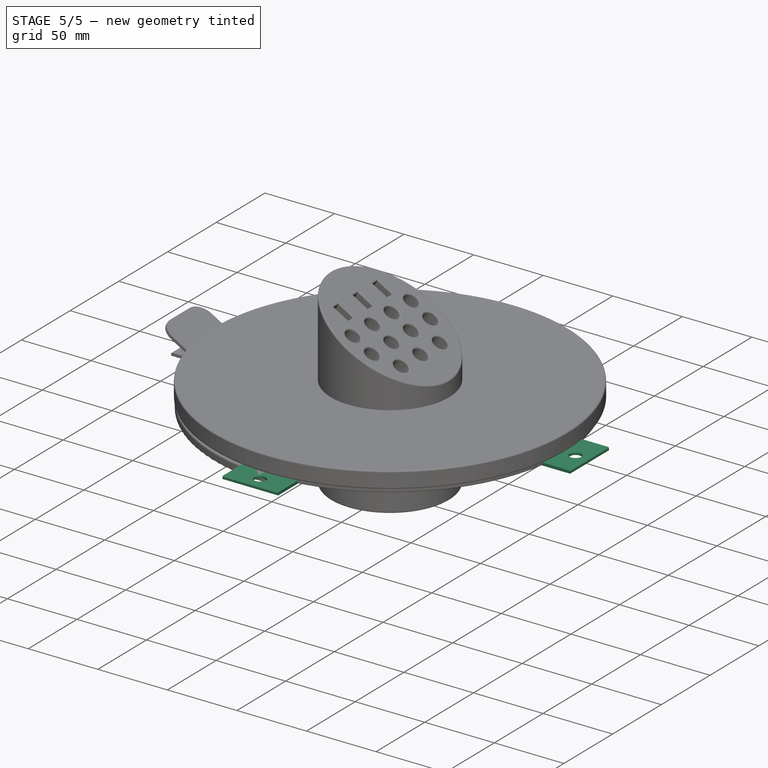
[diagram: stage 5 of 5 — iso view after this stage's code; geometry added in this stage tinted green]
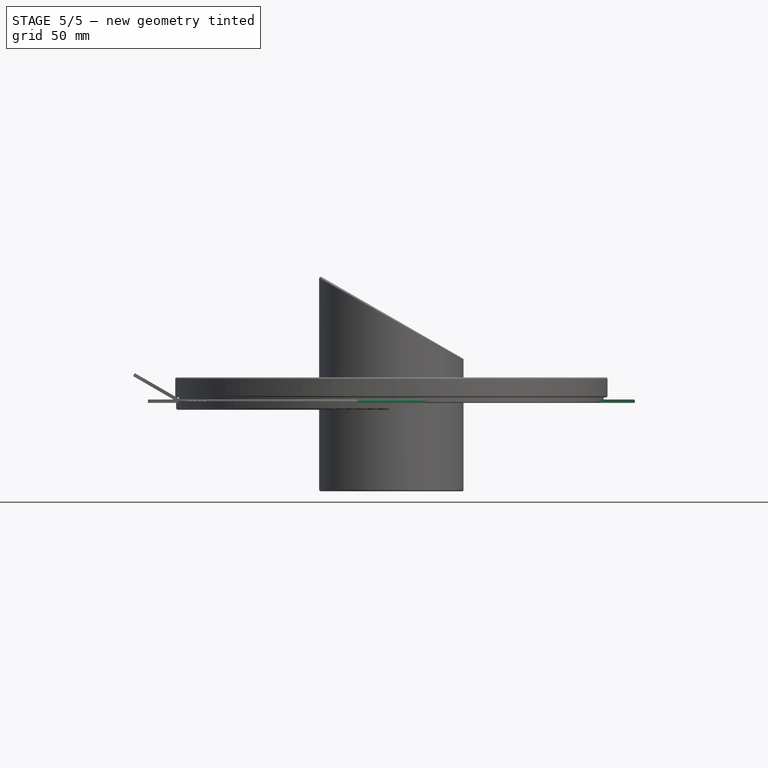
[diagram: stage 5 of 5 — front view after this stage's code; geometry added in this stage tinted green]
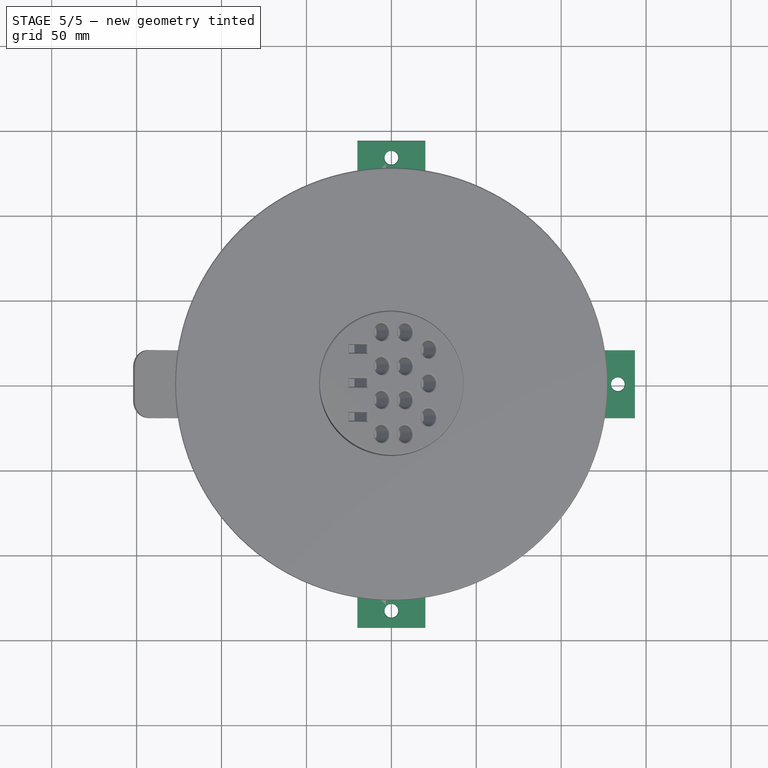
[diagram: stage 5 of 5 — top view after this stage's code; geometry added in this stage tinted green]
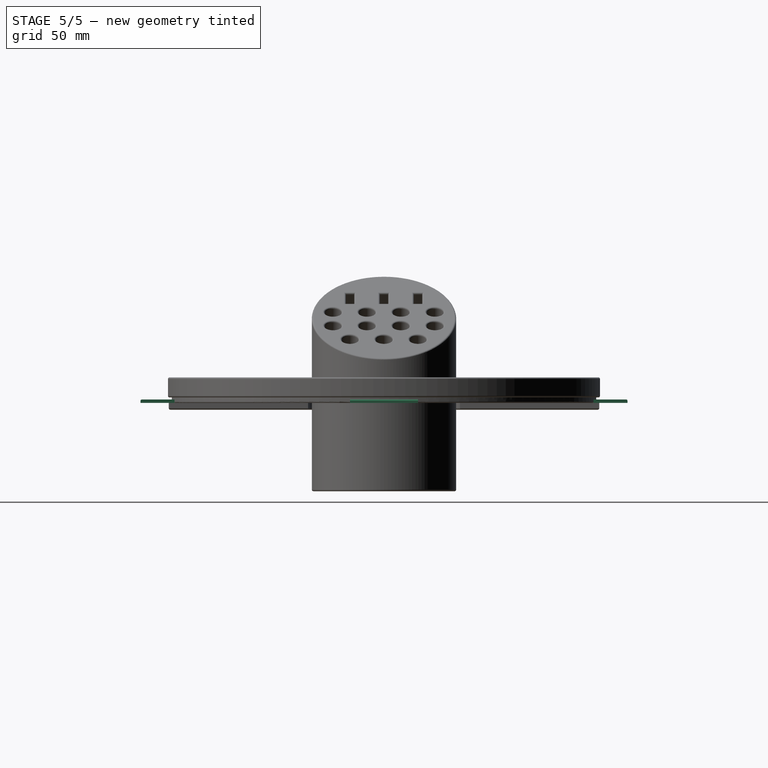
[diagram: stage 5 of 5 — right view after this stage's code; geometry added in this stage tinted green]
FEATURE [Spreadsheet::Sheet] Spreadsheet  label="Parameters"
  PythonMode = false
  ShowCells = 0
  TreeRank = 10
  cells = A1=https://thangs.com/designer/logicalplanet/3d-model/Lazy%20Susan%20160%20v3.0-1514462; A3=Thickness; B3(thickness)=2; D3=Thread Pitch; E3(thread_pitch)=4; A4=Tolerance; B4(tolerance)=0.25; D4=Thread Depth; E4(thread_depth)=1.5; D5=Thread Angle; E5(thread_angle)=25; A6=Outer Diameter; B6(outer_diameter)=250; D6=Thread Tollerance; E6(thread_tolerance)=1; A7=Inner Diameter; B7(inner_diameter)=200; A9=Roller Angle; B9(roller_angle)=10; A10=Roller Min Diameter; B10(roller_min_diameter)=6; A11=Roller Count; B11(roller_count)=48; A12=Roller Cage Support Arm Count; B12(roller_cage_support_count)=8; A14=Roller Cage Holder Handle Width; B14(handle_width)=20; A15=Roller Cage Holder Handle Length; B15(handle_length)=40; A16=Roller Cage Holder Handle Hole Diameter; B16(handle_hole_diameter)=8; A18=Petri Dish Diameter; B18(petri_dish_diameter)=70; A19=Tool Holder Diameter; B19(tool_holder_diameter)=85; A20=Tool Holder Base Height; B20(tool_holder_base_height)=60; A21=Tool Holder Top Height; B21(tool_holder_top_height)=65; A23=Calculated; A24=Roller Length; B24(roller_length)==(outer_diameter - inner_diameter) / 2 - 4 * thickness - 2 * tolerance; A25=Roller Max Radius; B25(roller_max_diameter)==roller_min_diameter + 2 * roller_length * tan(roller_angle); A27=Roller Cage Max Diameter; B27(roller_cage_max_diameter)==outer_diameter - 2 * thickness - 2 * tolerance; A28=Roller Cage Min Diameter; B28(roller_cage_min_diameter)==inner_diameter + 2 * thickness + 2 * tolerance; A29=Roller Cage Height; B29(roller_cage_height)==roller_max_diameter - tolerance; A31=Tool Mounting Plate Thickness; B31(tool_plate_thickness)=10; A32=Tool Mounting Plate Width; B32(tool_plate_width)=100; A33=Tool Mounting Plate Height; B33(tool_plate_height)=180; A34=Tool Mounting Plate Dovetail Angle; B34(tool_plate_dovetail_angle)=90; A35=Tool Mounting Plate Dovetail Count; B35(tool_plate_dovetail_count)=3; A36=Tool Mounting Plate Dovetail Min Width; B36(tool_plate_dovetail_min_width)=5; A37=Mounting Hole Diameter; B37(tool_plate_mounting_hole_diameter)=15
FEATURE [Sketcher::SketchObject] Sketch
  ArcFitTolerance = 1e-06
  AttachmentSupport = -> [XY_Plane]
  ExternalBSplineMaxDegree = 5
  ExternalBSplineTolerance = 0.0001
  FullyConstrained = true
  InternalTolerance = 1e-06
  InvalidShape = false
  MakeInternals = false
  MapMode = 5
  Support = -> [XY_Plane]
  TreeRank = 12
  ValidateShape = true
  expr: Constraints[1] = <<Parameters>>.roller_min_diameter
  sketch-geometry (1):
    g0: Circle CenterX=0 CenterY=0 CenterZ=0 NormalX=0 NormalY=0 NormalZ=1 AngleXU=0 Radius=3
  constraints (2):
    c: Coincident(g0,g-1)
    c: Diameter(g0) = 6
FEATURE [PartDesign::Pad] Pad
  AddSubType = 0
  AlongSketchNormal = false
  AutoTaperInnerAngle = true
  CheckUpToFaceLimits = true
  ClaimChildren = false
  Direction = (0,0,1)
  Fit = 0
  FitJoin = 0
  InnerFit = 0
  InnerFitJoin = 0
  InvalidShape = false
  Length = 16.5
  Length2 = 100
  Linearize = true
  NewSolid = false
  Profile = -> Sketch
  Suppress = false
  TaperAngle = 10
  TaperInnerAngle = -10
  TaperInnerAngleRev = 0
  TreeRank = 13
  Type = 0
  ValidateShape = true
  _ProfileBasedVersion = 1
  expr: Length = <<Parameters>>.roller_length
  expr: TaperAngle = <<Parameters>>.roller_angle
FEATURE [Sketcher::SketchObject] Sketch001
  ArcFitTolerance = 1e-06
  AttachmentSupport = -> [XZ_Plane]
  ExternalBSplineMaxDegree = 5
  ExternalBSplineTolerance = 0.0001
  FullyConstrained = true
  InternalTolerance = 1e-06
  InvalidShape = false
  MakeInternals = false
  MapMode = 5
  Placement = pos=(0,0,0) rot=(1,0,0;1.5708rad)
  Support = -> [XZ_Plane]
  TreeRank = 14
  ValidateShape = true
  expr: Constraints[15] = <<Parameters>>.roller_min_diameter / 4
  expr: Constraints[16] = <<Parameters>>.roller_angle * 2
  expr: Constraints[6] = <<Parameters>>.roller_max_diameter / 4
  expr: Constraints[7] = <<Parameters>>.roller_angle * 2
  expr: Constraints[8] = <<Parameters>>.roller_length
  sketch-geometry (6):
    g0: LineSegment StartX=0 StartY=16.5 StartZ=0 EndX=-2.9547 EndY=16.5 EndZ=0
    g1: LineSegment StartX=-2.9547 StartY=16.5 StartZ=0 EndX=0 EndY=8.38204 EndZ=0
    g2: LineSegment StartX=0 StartY=8.38204 StartZ=0 EndX=0 EndY=16.5 EndZ=0
    g3: LineSegment StartX=0 StartY=0 StartZ=0 EndX=-1.5 EndY=0 EndZ=0
    g4: LineSegment StartX=-1.5 StartY=0 StartZ=0 EndX=2e-16 EndY=4.12122 EndZ=0
    g5: LineSegment StartX=0 StartY=4.12122 StartZ=0 EndX=0 EndY=0 EndZ=0
  constraints (17):
    c: PointOnObject(g0,g-2)
    c: Horizontal(g0)
    c: Coincident(g1,g0)
    c: Coincident(g2,g1)
    c: Coincident(g2,g0)
    c: Vertical(g2)
    c: DistanceX(g0,g0) = 2.9547
    c: Angle(g2,g1) = 0.349066
    c: DistanceY(g-1,g0) = 16.5
    c: Coincident(g3,g-1)
    c: Horizontal(g3)
    c: Coincident(g4,g3)
    c: PointOnObject(g4,g-2)
    c: Coincident(g5,g4)
    c: Coincident(g5,g3)
    c: DistanceX(g3,g3) = 1.5
    c: Angle(g4,g5) = 0.349066
FEATURE [Sketcher::SketchObject] Sketch002
  ArcFitTolerance = 1e-06
  AttachmentSupport = -> [XY_Plane001]
  ExternalBSplineMaxDegree = 5
  ExternalBSplineTolerance = 0.0001
  FullyConstrained = true
  InternalTolerance = 1e-06
  InvalidShape = false
  MakeInternals = false
  MapMode = 5
  Support = -> [XY_Plane001]
  TreeRank = 26
  ValidateShape = true
  expr: Constraints[2] = <<Parameters>>.roller_cage_max_diameter
  expr: Constraints[3] = <<Parameters>>.roller_cage_max_diameter - 2 * <<Parameters>>.thickness
  expr: Constraints[6] = <<Parameters>>.roller_cage_min_diameter
  expr: Constraints[7] = <<Parameters>>.roller_cage_min_diameter + 2 * <<Parameters>>.thickness
  sketch-geometry (6):
    g0: Circle CenterX=0 CenterY=0 CenterZ=0 NormalX=0 NormalY=0 NormalZ=1 AngleXU=0 Radius=122.75
    g1: Circle CenterX=0 CenterY=0 CenterZ=0 NormalX=0 NormalY=0 NormalZ=1 AngleXU=0 Radius=120.75
    g2: Circle CenterX=0 CenterY=0 CenterZ=0 NormalX=0 NormalY=0 NormalZ=1 AngleXU=0 Radius=104.25
    g3: Circle CenterX=0 CenterY=0 CenterZ=0 NormalX=0 NormalY=0 NormalZ=1 AngleXU=0 Radius=102.25
    g4: GeomPoint [constr] X=-120.75 Y=0 Z=0
    g5: GeomPoint [constr] X=-104.25 Y=0 Z=0
  constraints (12):
    c: Coincident(g0,g-1)
    c: Coincident(g1,g0)
    c: Diameter(g0) = 245.5
    c: Diameter(g1) = 241.5
    c: Coincident(g2,g0)
    c: Coincident(g3,g0)
    c: Diameter(g3) = 204.5
    c: Diameter(g2) = 208.5
    c: PointOnObject(g4,g1)
    c: PointOnObject(g5,g2)
    c: PointOnObject(g4,g-1)
    c: PointOnObject(g5,g-1)
FEATURE [PartDesign::Pad] Pad001
  AddSubType = 0
  AlongSketchNormal = false
  AutoTaperInnerAngle = true
  CheckUpToFaceLimits = true
  ClaimChildren = false
  Direction = (0,0,1)
  Fit = 0
  FitJoin = 0
  InnerFit = 0
  InnerFitJoin = 0
  InvalidShape = false
  Length = 11.5688
  Length2 = 100
  Linearize = true
  NewSolid = false
  Profile = -> Sketch002
  Suppress = false
  TaperInnerAngle = 0
  TaperInnerAngleRev = 0
  TreeRank = 27
  Type = 0
  ValidateShape = true
  _ProfileBasedVersion = 1
  expr: Length = <<Parameters>>.roller_cage_height
FEATURE [Sketcher::SketchObject] Sketch003
  ArcFitTolerance = 1e-06
  AttachmentSupport = -> [XY_Plane001]
  ExternalBSplineMaxDegree = 5
  ExternalBSplineTolerance = 0.0001
  FullyConstrained = false
  InternalTolerance = 1e-06
  InvalidShape = false
  MakeInternals = false
  MapMode = 5
  Support = -> [XY_Plane001]
  TreeRank = 28
  ValidateShape = true
  expr: Constraints[13] = <<Parameters>>.roller_cage_max_diameter / 2 - <<Parameters>>.thickness / 2
  expr: Constraints[14] = <<Parameters>>.roller_cage_min_diameter / 2 + <<Parameters>>.thickness / 2
  expr: Constraints[1] = 180 / <<Parameters>>.roller_cage_support_count / 2
  expr: Constraints[9] = <<Parameters>>.thickness
  sketch-geometry (6):
    g0: LineSegment [constr] StartX=0 StartY=0 StartZ=0 EndX=162.03 EndY=32.2297 EndZ=0
    g1: LineSegment StartX=101.066 StartY=21.1229 StartZ=0 EndX=119.211 EndY=24.7322 EndZ=0
    g2: LineSegment StartX=119.211 StartY=24.7322 StartZ=0 EndX=119.602 EndY=22.7707 EndZ=0
    g3: LineSegment StartX=119.602 StartY=22.7707 StartZ=0 EndX=101.456 EndY=19.1613 EndZ=0
    g4: LineSegment StartX=101.456 StartY=19.1613 StartZ=0 EndX=101.066 EndY=21.1229 EndZ=0
    g5: GeomPoint [constr] X=110.334 Y=21.9468 Z=0
  constraints (15):
    c: Coincident(g0,g-1)
    c: Angle(g-1,g0) = 0.19635
    c: Coincident(g2,g1)
    c: Coincident(g3,g2)
    c: Coincident(g4,g3)
    c: Coincident(g4,g1)
    c: Parallel(g4,g2)
    c: Parallel(g1,g3)
    c: Perpendicular(g4,g1)
    c: Distance(g2,g1) = 2
    c: Parallel(g1,g0)
    c: Symmetric(g1,g2,g5)
    c: PointOnObject(g5,g0)
    c: Distance(g0,g2) = 121.75
    c: Distance(g0,g3) = 103.25
FEATURE [PartDesign::Pad] Pad002
  AddSubType = 0
  AlongSketchNormal = false
  AutoTaperInnerAngle = true
  BaseFeature = -> Pad001
  CheckUpToFaceLimits = true
  ClaimChildren = false
  Direction = (0,0,1)
  Fit = 0
  FitJoin = 0
  InnerFit = 0
  InnerFitJoin = 0
  InvalidShape = false
  Length = 11.5688
  Length2 = 100
  Linearize = true
  NewSolid = false
  Profile = -> Sketch003
  Suppress = false
  TaperInnerAngle = 0
  TaperInnerAngleRev = 0
  TreeRank = 29
  Type = 0
  ValidateShape = true
  _ProfileBasedVersion = 1
  expr: Length = <<Parameters>>.roller_cage_height
FEATURE [PartDesign::PolarPattern] PolarPattern
  AddSubType = 0
  Angle = 360
  Axis = -> Sketch003 [N_Axis]
  BaseFeature = -> Pad002
  CopyShape = false
  InvalidShape = false
  NewSolid = false
  Occurrences = 8
  OriginalSubs = -> [Pad002]
  Originals = -> [Pad002]
  ParallelTransform = true
  SubTransform = true
  Suppress = false
  TreeRank = 30
  ValidateShape = true
  _Version = 3
  expr: Occurrences = <<Parameters>>.roller_cage_support_count
FEATURE [Sketcher::SketchObject] Sketch004
  ArcFitTolerance = 1e-06
  AttachmentSupport = -> [XZ_Plane001]
  ExternalBSplineMaxDegree = 5
  ExternalBSplineTolerance = 0.0001
  FullyConstrained = false
  InternalTolerance = 1e-06
  InvalidShape = false
  MakeInternals = false
  MapMode = 5
  Placement = pos=(0,0,0) rot=(1,0,0;1.5708rad)
  Support = -> [XZ_Plane001]
  TreeRank = 31
  ValidateShape = true
  expr: Constraints[0] = <<Parameters>>.roller_min_diameter / 2
  expr: Constraints[15] = <<Parameters>>.thickness / 3
  expr: Constraints[1] = 180 - <<Parameters>>.roller_angle
  expr: Constraints[2] = (<<Parameters>>.roller_cage_min_diameter + 2 * <<Parameters>>.thickness) / 2 - 1
  expr: Constraints[7] = <<Parameters>>.roller_min_diameter / 4.5
  expr: Constraints[8] = <<Parameters>>.roller_angle * 2
  sketch-geometry (6):
    g0: LineSegment [constr] StartX=-126.241 StartY=7.05387 StartZ=0 EndX=-103.25 EndY=3 EndZ=0
    g1: LineSegment StartX=-103.25 StartY=3 StartZ=0 EndX=-105.826 EndY=3.45424 EndZ=0
    g2: LineSegment StartX=-105.503 StartY=2.76113 StartZ=0 EndX=-103.917 EndY=1.8453 EndZ=0
    g3: LineSegment StartX=-103.917 StartY=1.8453 StartZ=0 EndX=-103.25 EndY=3 EndZ=0
    g4: ArcOfCircle CenterX=-105.17 CenterY=3.33848 CenterZ=0 NormalX=0 NormalY=0 NormalZ=1 AngleXU=0 Radius=0.666667 StartAngle=2.96706 EndAngle=4.18879
    g5: GeomPoint [constr] X=-105.503 Y=2.76112 Z=0
  constraints (16):
    c: DistanceY(g-1,g0) = 3
    c: Angle(g-1,g0) = 2.96706
    c: DistanceX(g0,g-1) = 103.25
    c: Coincident(g1,g0)
    c: Coincident(g3,g2)
    c: Coincident(g3,g0)
    c: Perpendicular(g3,g2)
    c: Distance(g2,g1) = 1.33333
    c: Angle(g2,g1) = 0.349066
    c: PointOnObject(g4,g1)
    c: PointOnObject(g5,g4)
    c: PointOnObject(g5,g2)
    c: Coincident(g4,g1)
    c: Tangent(g4,g2) = -1.5708
    c: PointOnObject(g1,g0)
    c: Radius(g4) = 0.666667
FEATURE [PartDesign::Revolution] Revolution
  AddSubType = 0
  Angle = 360
  Axis = (22.9906,9e-16,-4.05387)
  Base = (-126.241,-1.6e-15,7.05387)
  BaseFeature = -> PolarPattern
  ClaimChildren = false
  Fit = 0
  FitJoin = 0
  InnerFit = 0
  InnerFitJoin = 0
  InvalidShape = false
  Linearize = true
  NewSolid = false
  Profile = -> Sketch004
  ReferenceAxis = -> Sketch004 [Axis]
  Reversed = true
  Suppress = false
  TreeRank = 33
  ValidateShape = true
  _ProfileBasedVersion = 1
FEATURE [Sketcher::SketchObject] Sketch005
  ArcFitTolerance = 1e-06
  AttachmentSupport = -> [XZ_Plane001]
  ExternalBSplineMaxDegree = 5
  ExternalBSplineTolerance = 0.0001
  FullyConstrained = true
  InternalTolerance = 1e-06
  InvalidShape = false
  MakeInternals = false
  MapMode = 5
  Placement = pos=(0,0,0) rot=(1,0,0;1.5708rad)
  Support = -> [XZ_Plane001]
  TreeRank = 34
  ValidateShape = true
  expr: Constraints[0] = (<<Parameters>>.roller_cage_max_diameter - 2 * <<Parameters>>.thickness) / 2 + 1
  expr: Constraints[17] = <<Parameters>>.thickness / 2
  expr: Constraints[1] = <<Parameters>>.roller_max_diameter / 2
  expr: Constraints[2] = 180 - <<Parameters>>.roller_angle
  expr: Constraints[7] = <<Parameters>>.roller_max_diameter / 4.5
  expr: Constraints[9] = <<Parameters>>.roller_angle * 2
  sketch-geometry (6):
    g0: LineSegment [constr] StartX=-121.75 StartY=5.9094 StartZ=0 EndX=-88.2362 EndY=0 EndZ=0
    g1: LineSegment StartX=-121.75 StartY=5.9094 StartZ=0 EndX=-122.206 EndY=3.3229 EndZ=0
    g2: LineSegment StartX=-122.206 StartY=3.3229 StartZ=0 EndX=-117.349 EndY=4.17926 EndZ=0
    g3: LineSegment StartX=-116.538 StartY=4.99042 StartZ=0 EndX=-121.75 EndY=5.9094 EndZ=0
    g4: ArcOfCircle CenterX=-117.523 CenterY=5.16407 CenterZ=0 NormalX=0 NormalY=0 NormalZ=1 AngleXU=0 Radius=1 StartAngle=4.88692 EndAngle=6.10865
    g5: GeomPoint [constr] X=-117.349 Y=4.17926 Z=0
  constraints (18):
    c: DistanceX(g0,g-1) = 121.75
    c: DistanceY(g-1,g0) = 5.9094
    c: Angle(g-1,g0) = 2.96706
    c: PointOnObject(g0,g-1)
    c: Coincident(g1,g0)
    c: Coincident(g2,g1)
    c: Coincident(g3,g0)
    c: Distance(g1,g1) = 2.6264
    c: Perpendicular(g1,g3)
    c: Angle(g3,g2) = 0.349066
    c: PointOnObject(g4,g3)
    c: PointOnObject(g5,g4)
    c: PointOnObject(g5,g2)
    c: PointOnObject(g3,g4)
    c: Tangent(g4,g2) = -1.5708
    c: PointOnObject(g4,g0)
    c: PointOnObject(g4,g0)
    c: Radius(g4) = 1
FEATURE [PartDesign::Revolution] Revolution001
  AddSubType = 0
  Angle = 360
  Axis = (33.5138,1.3e-15,-5.9094)
  Base = (-121.75,-1.3e-15,5.9094)
  BaseFeature = -> Revolution
  ClaimChildren = false
  Fit = 0
  FitJoin = 0
  InnerFit = 0
  InnerFitJoin = 0
  InvalidShape = false
  Linearize = true
  NewSolid = false
  Profile = -> Sketch005
  ReferenceAxis = -> Sketch005 [Axis]
  Reversed = true
  Suppress = false
  TreeRank = 35
  ValidateShape = true
  _ProfileBasedVersion = 1
FEATURE [Sketcher::SketchObject] Sketch006
  ArcFitTolerance = 1e-06
  AttachmentSupport = -> [XZ_Plane001]
  ExternalBSplineMaxDegree = 5
  ExternalBSplineTolerance = 0.0001
  FullyConstrained = false
  InternalTolerance = 1e-06
  InvalidShape = false
  MakeInternals = false
  MapMode = 5
  Placement = pos=(0,0,0) rot=(1,0,0;1.5708rad)
  Support = -> [XZ_Plane001]
  TreeRank = 37
  ValidateShape = true
  expr: Constraints[0] = <<Parameters>>.roller_cage_height - 4 * <<Parameters>>.tolerance
  expr: Constraints[1] = <<Parameters>>.roller_cage_max_diameter / 2
  expr: Constraints[2] = <<Parameters>>.roller_cage_min_diameter / 2
  expr: Constraints[3] = <<Parameters>>.roller_min_diameter - <<Parameters>>.tolerance - 4 * <<Parameters>>.tolerance
  sketch-geometry (4):
    g0: LineSegment StartX=-122.75 StartY=10.5688 StartZ=0 EndX=-102.25 EndY=4.75 EndZ=0
    g1: LineSegment StartX=-122.75 StartY=10.5688 StartZ=0 EndX=-122.75 EndY=18.8071 EndZ=0
    g2: LineSegment StartX=-102.25 StartY=4.75 StartZ=0 EndX=-102.25 EndY=18.8071 EndZ=0
    g3: LineSegment StartX=-102.25 StartY=18.8071 StartZ=0 EndX=-122.75 EndY=18.8071 EndZ=0
  constraints (11):
    c: DistanceY(g-1,g0) = 10.5688
    c: DistanceX(g0,g-1) = 122.75
    c: DistanceX(g0,g-1) = 102.25
    c: DistanceY(g-1,g0) = 4.75
    c: Coincident(g1,g0)
    c: Vertical(g1)
    c: Coincident(g2,g0)
    c: Vertical(g2)
    c: Coincident(g3,g2)
    c: Coincident(g3,g1)
    c: Horizontal(g3)
FEATURE [Sketcher::SketchObject] Sketch008
  ArcFitTolerance = 1e-06
  AttachmentSupport = -> [XZ_Plane001]
  ExternalBSplineMaxDegree = 5
  ExternalBSplineTolerance = 0.0001
  FullyConstrained = true
  InternalTolerance = 1e-06
  InvalidShape = false
  MakeInternals = false
  MapMode = 5
  Placement = pos=(0,0,0) rot=(1,0,0;1.5708rad)
  Support = -> [XZ_Plane001]
  TreeRank = 40
  ValidateShape = true
  expr: Constraints[10] = <<Parameters>>.tolerance * 4
  expr: Constraints[12] = <<Parameters>>.outer_diameter
  sketch-geometry (5):
    g0: LineSegment StartX=125 StartY=1 StartZ=0 EndX=125 EndY=0 EndZ=0
    g1: LineSegment StartX=125 StartY=0 StartZ=0 EndX=-125 EndY=0 EndZ=0
    g2: LineSegment StartX=-125 StartY=0 StartZ=0 EndX=-125 EndY=1 EndZ=0
    g3: LineSegment StartX=-125 StartY=1 StartZ=0 EndX=125 EndY=1 EndZ=0
    g4: GeomPoint [constr] X=0 Y=0.5 Z=0
  constraints (13):
    c: Coincident(g0,g1)
    c: Coincident(g1,g2)
    c: Coincident(g2,g3)
    c: Coincident(g3,g0)
    c: Horizontal(g1)
    c: Horizontal(g3)
    c: Vertical(g0)
    c: Vertical(g2)
    c: Symmetric(g1,g0,g4)
    c: PointOnObject(g4,g-2)
    c: DistanceY(g0,g0) = 1
    c: PointOnObject(g0,g-1)
    c: DistanceX(g1,g0) = 250
FEATURE [PartDesign::PolarPattern] PolarPattern001
  AddSubType = 0
  Angle = 360
  Axis = -> Sketch005 [V_Axis]
  BaseFeature = -> Revolution001
  CopyShape = false
  InvalidShape = false
  NewSolid = false
  Occurrences = 48
  OriginalSubs = -> [Revolution001,Revolution]
  Originals = -> [Revolution001,Revolution]
  ParallelTransform = true
  SubTransform = true
  Suppress = false
  TreeRank = 43
  ValidateShape = true
  _Version = 3
  expr: Occurrences = <<Parameters>>.roller_count
FEATURE [PartDesign::Groove] Groove001
  AddSubType = 1
  Angle = 360
  Axis = (0,-2e-16,1)
  Base = (0,0,0)
  BaseFeature = -> PolarPattern001
  ClaimChildren = false
  Fit = 0
  FitJoin = 0
  InnerFit = 0
  InnerFitJoin = 0
  InvalidShape = false
  Linearize = true
  NewSolid = false
  Profile = -> Sketch006
  ReferenceAxis = -> Sketch006 [V_Axis]
  Reversed = true
  Suppress = false
  TreeRank = 38
  ValidateShape = true
  _ProfileBasedVersion = 1
FEATURE [PartDesign::Pocket] Pocket
  AddSubType = 1
  AutoTaperInnerAngle = true
  BaseFeature = -> Groove001
  CheckUpToFaceLimits = true
  ClaimChildren = false
  Fit = 0
  FitJoin = 0
  InnerFit = 0
  InnerFitJoin = 0
  InvalidShape = false
  Length = 250
  Length2 = 250
  Linearize = true
  NewSolid = false
  Profile = -> Sketch008
  Suppress = false
  TaperInnerAngle = 0
  TaperInnerAngleRev = 0
  TreeRank = 41
  Type = 4
  ValidateShape = true
  _ProfileBasedVersion = 1
  _Version = 1
  expr: Length = <<Parameters>>.outer_diameter
  expr: Length2 = <<Parameters>>.outer_diameter
FEATURE [PartDesign::Body] Body001  label="Roller Cage"
  AutoGroupSolids = false
  ClaimAllChildren = false
  ExportMode = 0
  Group = -> [Sketch002,Pad001,Sketch003,Pad002,PolarPattern,Sketch004,Revolution,Sketch005,Revolution001,Sketch006,PolarPattern001,Groove001,Sketch008,Pocket]
  InvalidShape = false
  Origin = -> Origin001
  Tip = -> Pocket
  TreeRank = 25
  ValidateShape = true
  _ExportChildren = -> [Pad001,Pad002,PolarPattern,Revolution,Revolution001,PolarPattern001,Groove001,Pocket]
  _GroupVersion = 1
FEATURE [PartDesign::Fillet] Fillet
  AddSubType = 0
  Base = -> Pad [Edge3]
  BaseFeature = -> Pad
  InvalidShape = false
  NewSolid = false
  Radius = 3.9396
  SupportTransform = false
  Suppress = false
  TreeRank = 45
  ValidateShape = true
  expr: Radius = <<Parameters>>.roller_max_diameter / 3
FEATURE [PartDesign::Fillet] Fillet001
  AddSubType = 0
  Base = -> Fillet [Edge3]
  BaseFeature = -> Fillet
  InvalidShape = false
  NewSolid = false
  Radius = 2
  SupportTransform = false
  Suppress = false
  TreeRank = 46
  ValidateShape = true
  expr: Radius = <<Parameters>>.roller_min_diameter / 3
FEATURE [PartDesign::Groove] Groove
  AddSubType = 1
  Angle = 360
  Axis = (0,-2e-16,1)
  Base = (0,0,0)
  BaseFeature = -> Fillet001
  ClaimChildren = false
  Fit = 0
  FitJoin = 0
  InnerFit = 0
  InnerFitJoin = 0
  InvalidShape = false
  Linearize = true
  NewSolid = false
  Profile = -> Sketch001
  ReferenceAxis = -> Sketch001 [V_Axis]
  Reversed = true
  Suppress = false
  TreeRank = 47
  ValidateShape = true
  _ProfileBasedVersion = 1
FEATURE [PartDesign::PolarPattern] PolarPattern002
  AddSubType = 0
  Angle = 360
  Axis = -> Sketch010 [N_Axis]
  BaseFeature = -> Pad003
  CopyShape = false
  InvalidShape = false
  NewSolid = false
  Occurrences = 4
  OriginalSubs = -> [Pad003]
  Originals = -> [Pad003]
  ParallelTransform = true
  SubTransform = true
  Suppress = false
  TreeRank = 62
  ValidateShape = true
  _Version = 3
FEATURE [PartDesign::Fillet] Fillet002
  AddSubType = 0
  Base = -> PolarPattern002 [Edge36,Edge9,Edge13,Edge21,Edge17,Edge29,Edge26,Edge42,Edge40,Edge50,Edge48,Edge58,Edge56,Edge24,Edge63,Edge4,Edge1]
  BaseFeature = -> PolarPattern002
  InvalidShape = false
  NewSolid = false
  Radius = 0.75
  SupportTransform = false
  Suppress = false
  TreeRank = 73
  ValidateShape = true
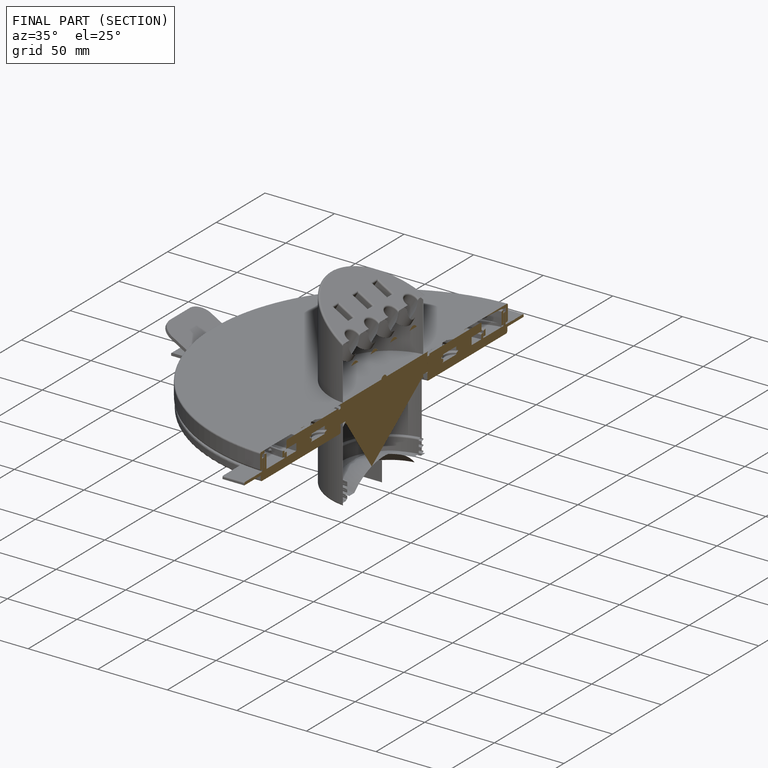
[diagram: finished part — half-section view (interior)]
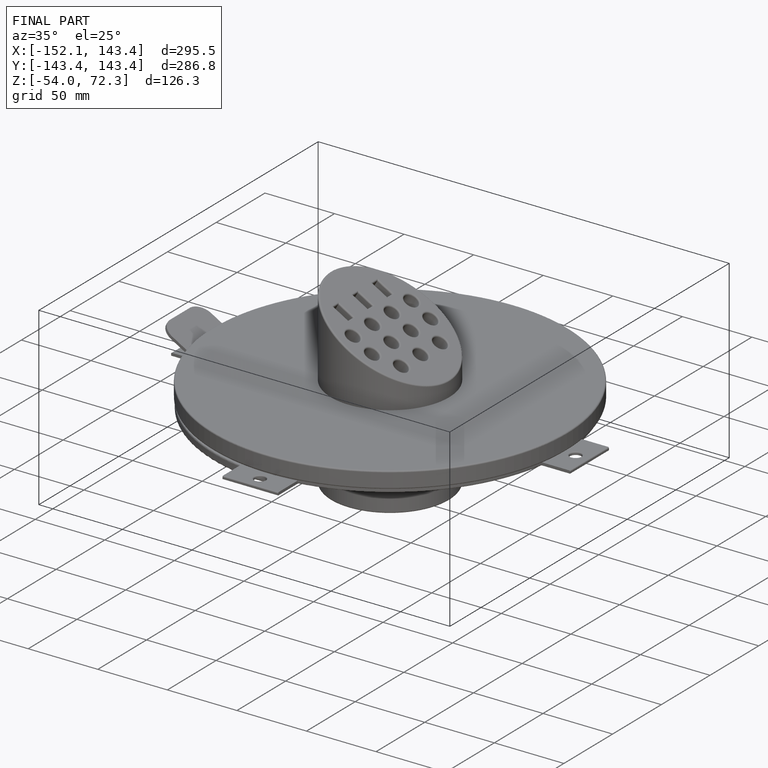
[diagram: finished part — iso view with bounding-box wireframe]
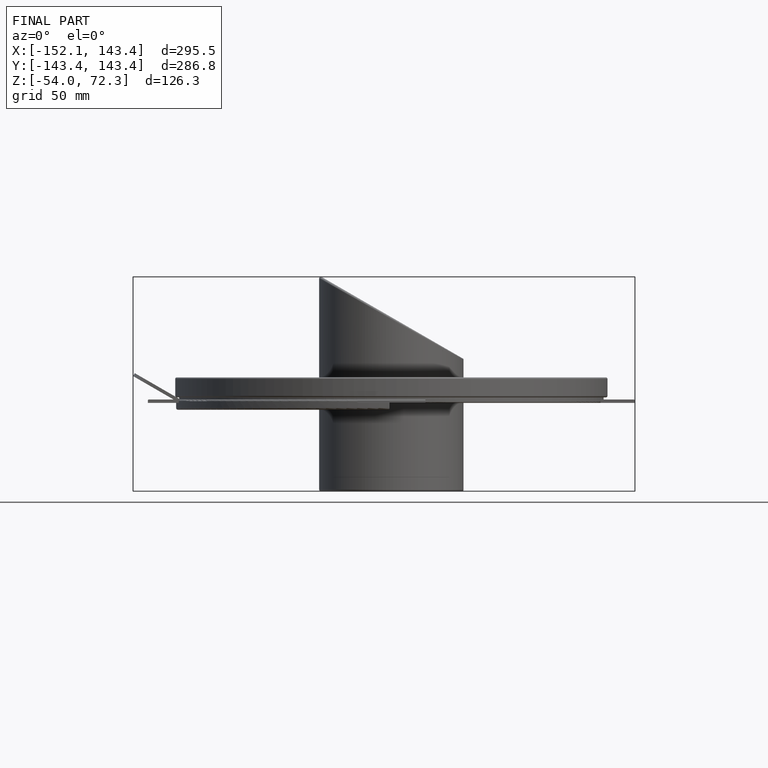
[diagram: finished part — front view with bounding-box wireframe]
